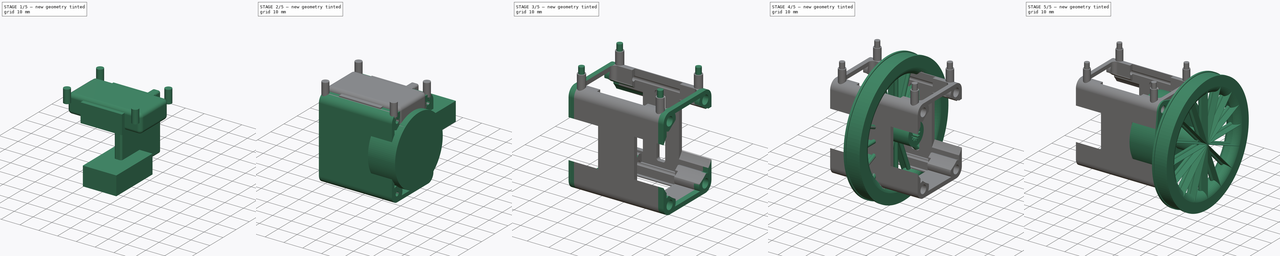
[diagram: build sequence overview — one tinted view per stage of 5, left to right]
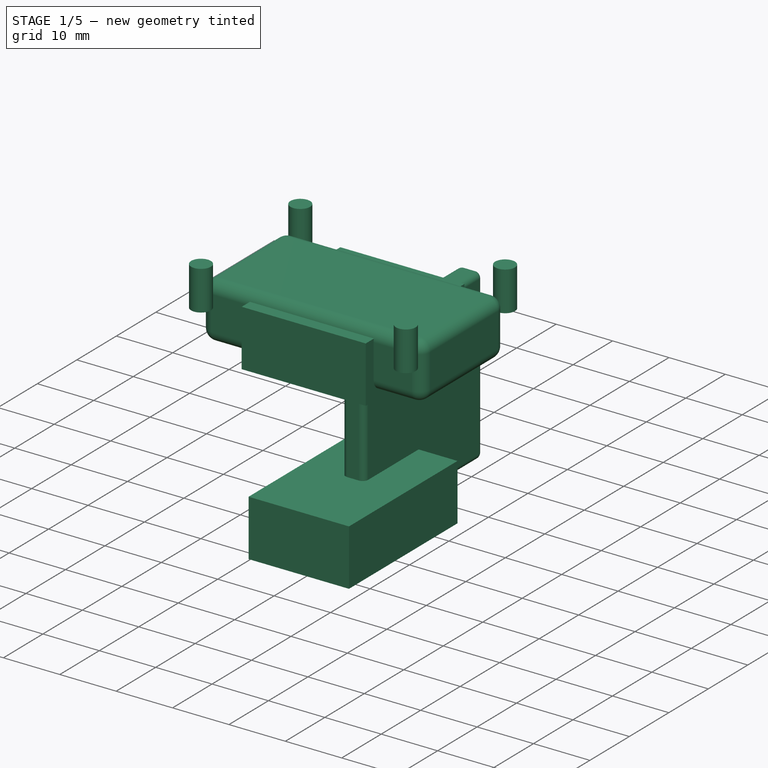
[diagram: stage 1 of 5 — iso view after this stage's code; geometry added in this stage tinted green]
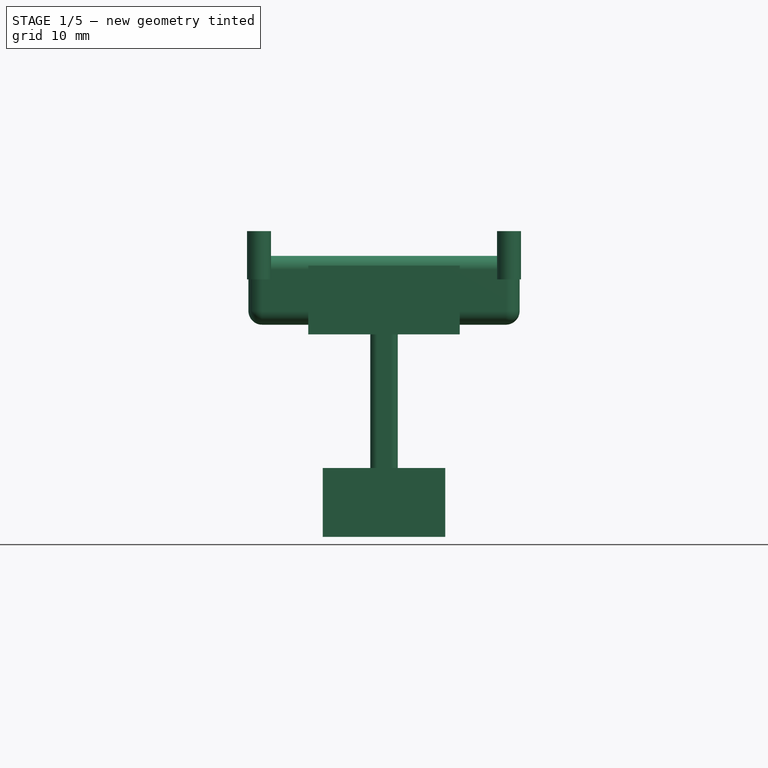
[diagram: stage 1 of 5 — front view after this stage's code; geometry added in this stage tinted green]
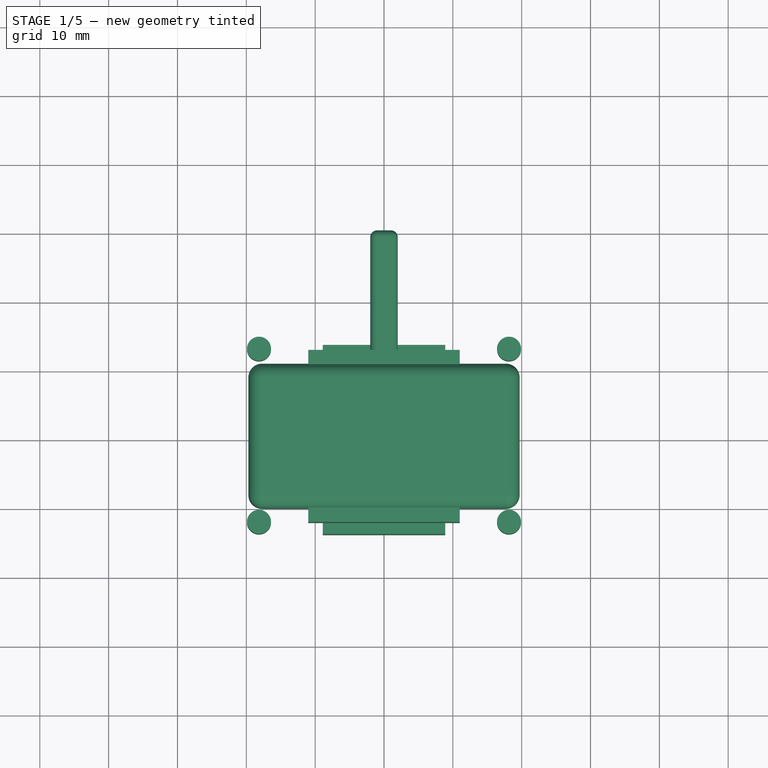
[diagram: stage 1 of 5 — top view after this stage's code; geometry added in this stage tinted green]
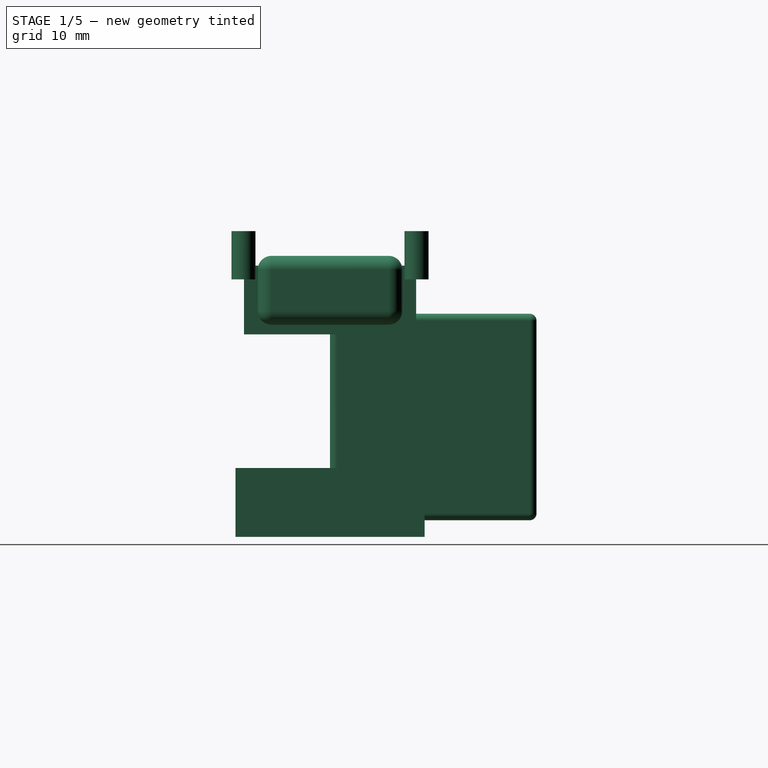
[diagram: stage 1 of 5 — right view after this stage's code; geometry added in this stage tinted green]
FCSTD DOCUMENT  (FreeCAD 0.20R29603 (Git))
Label: xilitol-robot
License: All rights reserved
LicenseURL: http://en.wikipedia.org/wiki/All_rights_reserved
objects: Sketcher::SketchObject×10, PartDesign::Body×9, Part::Box×9, PartDesign::Pad×8, Part::Cylinder×6, Part::MultiFuse×6, Part::Cut×6, Part::FeaturePython×4, App::Part×3, PartDesign::Revolution×2, PartDesign::PolarPattern×2, Part::Fillet×2, Spreadsheet::Sheet×1
note: 74 computed .brp shape members not serialized (recipe doc carries the construction recipe); baked Part::Feature solids carry a one-line shape summary decoded from their .brp

FEATURE [PartDesign::Body] Body004  label="Body005"
  Group = -> [Sketch004,Pad004]
  Origin = -> Origin006
  Tip = -> Pad004
FEATURE [Part::Box] Box007  label="Cube007"
  AttacherType = Attacher::AttachEngine3D
  Height = 10
  Length = 39.4
  Placement = pos=(-19.7,-10.5,13.4098) rot=(0,0,1;0rad)
  Width = 21
  expr: .Placement.Base.x = -Length / 2
  expr: .Placement.Base.y = -Width / 2
  expr: .Placement.Base.z = -Spreadsheet.BodyFloorZ - 8
  expr: Height = 10mm
  expr: Length = Spreadsheet.BodyInnerWidth - Spreadsheet.GenericWallThickness * 2 - Spreadsheet.GeneralSlack * 2
  expr: Width = Spreadsheet.MPUBoardHeight
FEATURE [PartDesign::Body] Body007  label="Body008"
  Group = -> [Sketch008,Revolution001,PolarPattern]
  Origin = -> Origin011
  Tip = -> PolarPattern
FEATURE [Part::Box] Box  label="Cube"
  AttacherType = Attacher::AttachEngine3D
  Height = 10
  Length = 22
  Placement = pos=(-11,-12.5,12) rot=(0,0,1;0rad)
  Width = 25
  expr: .Placement.Base.x = -Length / 2
  expr: .Placement.Base.y = -Width / 2
FEATURE [Part::Box] Box010  label="Cube010"
  AttacherType = Attacher::AttachEngine3D
  Height = 10
  Length = 17.8
  Placement = pos=(-8.9,-13.7431,-17.4098) rot=(0,0,1;0rad)
  Width = 27.4861
  expr: .Placement.Base.x = -Length / 2
  expr: .Placement.Base.y = -Width / 2
  expr: .Placement.Base.z = Spreadsheet.BodyFloorZ + 4
  expr: Height = 10mm
  expr: Length = Spreadsheet.BodyInnerWidth + Spreadsheet.GenericWallThickness * 2 - Spreadsheet.MotorBodyDepth * 2
  expr: Width = Spreadsheet.BottomMotorScrewSupportY * 2 + Spreadsheet.MotorScrewSupportDiameter - Spreadsheet.GenericWallThickness * 2
FEATURE [Part::Fillet] Fillet
  Base = -> Box007
  Edges = 12 edges r=2: [Edge1,Edge2,Edge3,Edge4,Edge5,Edge6,Edge7,Edge8,Edge9,Edge10,Edge11,Edge12]
FEATURE [Part::Box] Box011  label="Cube011"
  AttacherType = Attacher::AttachEngine3D
  Height = 30
  Length = 4
  Placement = pos=(-2,0,-15) rot=(0,0,1;0rad)
  Width = 30
  expr: .Placement.Base.x = -Length / 2
  expr: .Placement.Base.z = -Height / 2
FEATURE [Part::Fillet] Fillet001
  Base = -> Box011
  Edges = 12 edges r=1: [Edge1,Edge2,Edge3,Edge4,Edge5,Edge6,Edge7,Edge8,Edge9,Edge10,Edge11,Edge12]
FEATURE [Sketcher::SketchObject] Sketch012
  FullyConstrained = true
  MapMode = 5
  Support = -> [XY_Plane016]
  sketch-geometry (12):
    g0: Circle CenterX=-18.16 CenterY=12.573 CenterZ=0 NormalX=0 NormalY=0 NormalZ=1 AngleXU=0 Radius=1.75
    g1: Circle CenterX=-18.16 CenterY=-12.573 CenterZ=0 NormalX=0 NormalY=0 NormalZ=1 AngleXU=0 Radius=1.75
    g2: Circle CenterX=18.16 CenterY=-12.573 CenterZ=0 NormalX=0 NormalY=0 NormalZ=1 AngleXU=0 Radius=1.75
    g3: Circle CenterX=18.16 CenterY=12.573 CenterZ=0 NormalX=0 NormalY=0 NormalZ=1 AngleXU=0 Radius=1.75
    g4: LineSegment StartX=-18.16 StartY=12.573 StartZ=0 EndX=18.16 EndY=12.573 EndZ=0
    g5: LineSegment StartX=18.16 StartY=12.573 StartZ=0 EndX=18.16 EndY=-12.573 EndZ=0
    g6: LineSegment StartX=18.16 StartY=-12.573 StartZ=0 EndX=-18.16 EndY=-12.573 EndZ=0
    g7: LineSegment StartX=-18.16 StartY=-12.573 StartZ=0 EndX=-18.16 EndY=12.573 EndZ=0
    g8: LineSegment StartX=-25 StartY=20 StartZ=0 EndX=25 EndY=20 EndZ=0
    g9: LineSegment StartX=25 StartY=20 StartZ=0 EndX=25 EndY=-20 EndZ=0
    g10: LineSegment StartX=25 StartY=-20 StartZ=0 EndX=-25 EndY=-20 EndZ=0
    g11: LineSegment StartX=-25 StartY=-20 StartZ=0 EndX=-25 EndY=20 EndZ=0
  constraints (30):
    c: Equal(g3,g2)
    c: Equal(g2,g1)
    c: Equal(g1,g0)
    c: Radius(g0) = 1.75
    c: Symmetric(g0,g3,g-2)
    c: Symmetric(g0,g1,g-1)
    c: Symmetric(g2,g3,g-1)
    c: DistanceY(g1,g0) = 25.146
    c: Coincident(g4,g5)
    c: Coincident(g5,g6)
    c: Coincident(g6,g7)
    c: Coincident(g7,g4)
    c: Horizontal(g4)
    c: Horizontal(g6)
    c: Vertical(g5)
    c: Vertical(g7)
    c: Coincident(g4,g0)
    c: Coincident(g5,g2)
    c: DistanceX(g4,g4) = 36.32
    c: Coincident(g8,g9)
    c: Coincident(g9,g10)
    c: Coincident(g10,g11)
    c: Coincident(g11,g8)
    c: Horizontal(g8)
    c: Horizontal(g10)
    c: Vertical(g9)
    c: Vertical(g11)
    c: Symmetric(g8,g9,g-1)
    c: DistanceX(g8,g8) = 50
    c: DistanceY(g9,g9) = 40
FEATURE [PartDesign::Pad] Pad010
  Direction = (0,0,1)
  Length = 7
  Length2 = 10
  Profile = -> Sketch012
  ReferenceAxis = -> Sketch012 [N_Axis]
  Type = 0
FEATURE [PartDesign::Body] Body011  label="Body012"
  Group = -> [Sketch012,Pad010]
  Origin = -> Origin016
  Placement = pos=(0,0,20) rot=(0,0,1;0rad)
  Tip = -> Pad010
FEATURE [Part::Box] Box013  label="Cube013"
  AttacherType = Attacher::AttachEngine3D
  Height = 7
  Length = 50
  Placement = pos=(-25,-20,20) rot=(0,0,1;0rad)
  Width = 40
  expr: .Placement.Base.x = -Length / 2
  expr: .Placement.Base.y = -Width / 2
FEATURE [Part::Cut] Cut005
  Base = -> Box013
  Tool = -> Body011
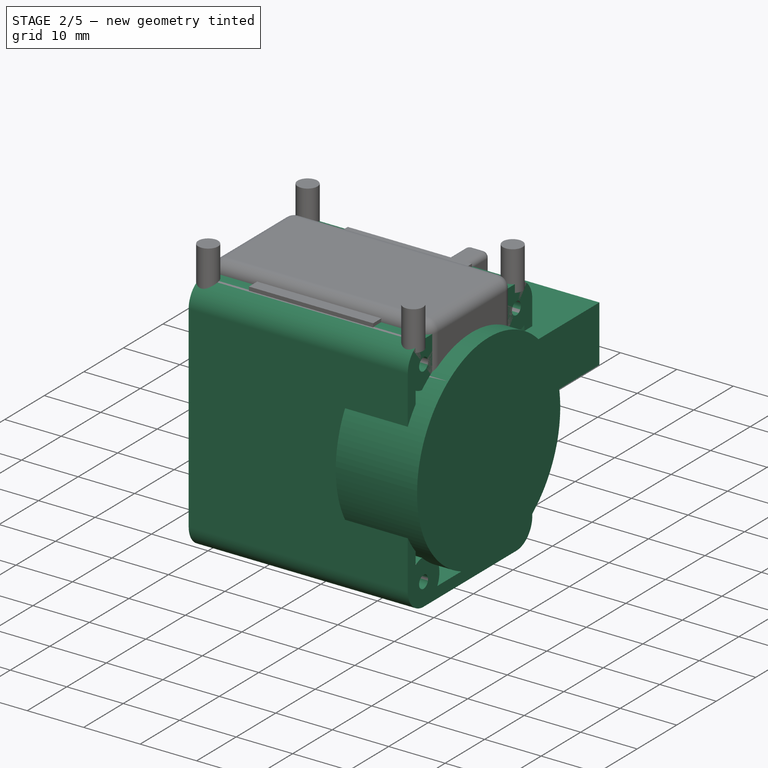
[diagram: stage 2 of 5 — iso view after this stage's code; geometry added in this stage tinted green]
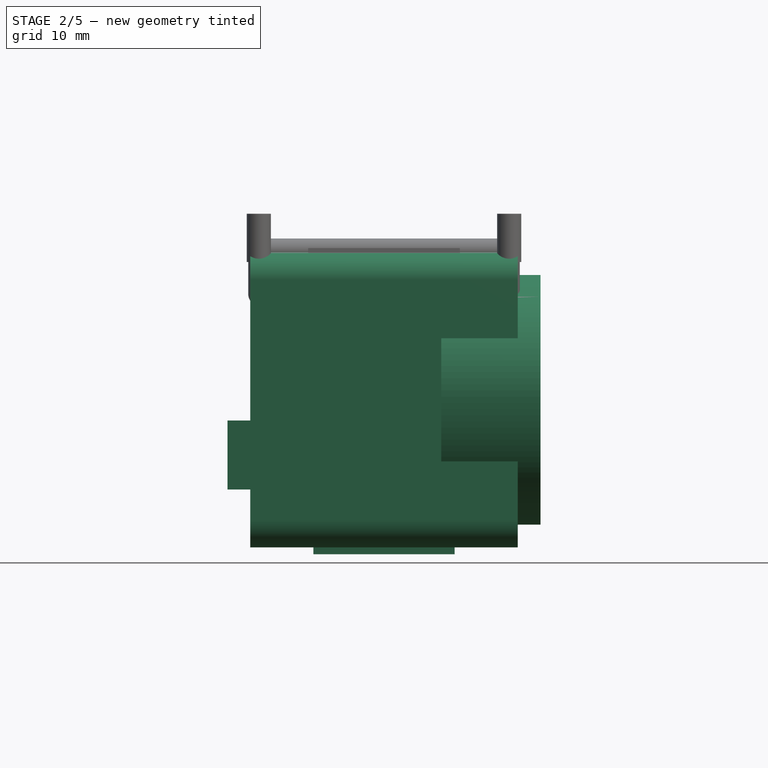
[diagram: stage 2 of 5 — front view after this stage's code; geometry added in this stage tinted green]
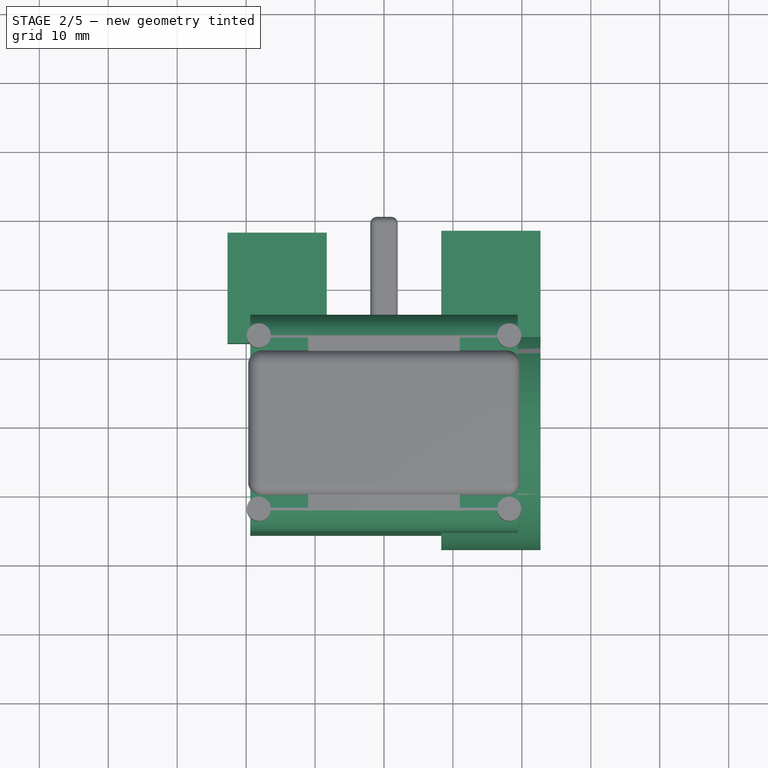
[diagram: stage 2 of 5 — top view after this stage's code; geometry added in this stage tinted green]
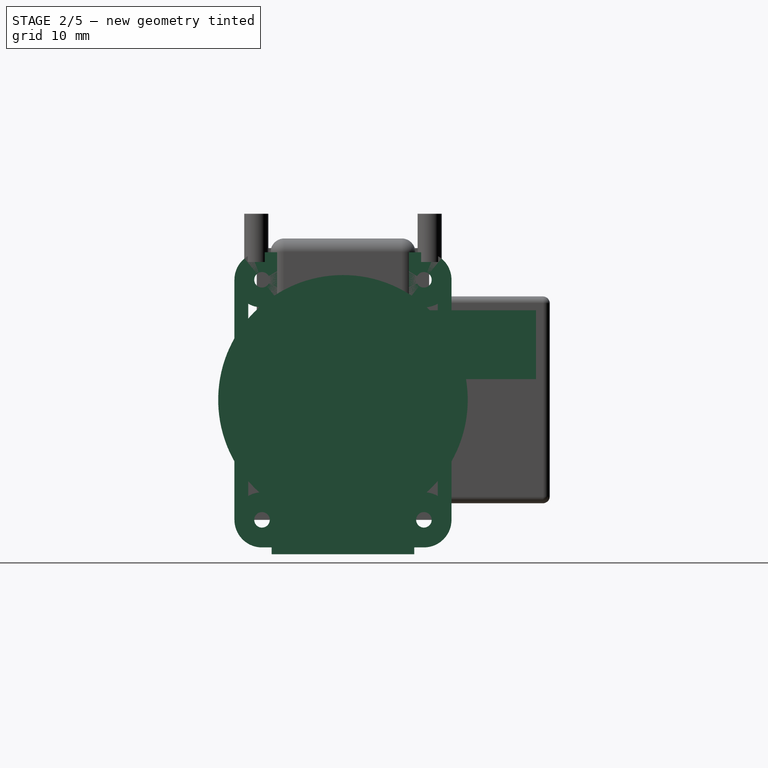
[diagram: stage 2 of 5 — right view after this stage's code; geometry added in this stage tinted green]
FEATURE [PartDesign::Body] Body
  Group = -> [Sketch,Pad]
  Origin = -> Origin001
  Placement = pos=(0,0,0) rot=(0,0,-1;0.593412rad)
  Tip = -> Pad
  expr: .Placement.Rotation.Angle = Spreadsheet.MotorSupportAngle
FEATURE [Sketcher::SketchObject] Sketch003
  FullyConstrained = true
  MapMode = 5
  Placement = pos=(0,0,0) rot=(0.57735,0.57735,0.57735;2.0944rad)
  Support = -> [YZ_Plane005]
  sketch-geometry (37):
    g0: Circle CenterX=11.7431 CenterY=17.4098 CenterZ=0 NormalX=0 NormalY=0 NormalZ=1 AngleXU=0 Radius=4
    g1: Circle CenterX=11.7431 CenterY=17.4098 CenterZ=0 NormalX=0 NormalY=0 NormalZ=1 AngleXU=0 Radius=1.125
    g2: Circle CenterX=-11.7431 CenterY=17.4098 CenterZ=0 NormalX=0 NormalY=0 NormalZ=1 AngleXU=0 Radius=4
    g3: Circle CenterX=-11.7431 CenterY=-17.4098 CenterZ=0 NormalX=0 NormalY=0 NormalZ=1 AngleXU=0 Radius=4
    g4: Circle CenterX=11.7431 CenterY=-17.4098 CenterZ=0 NormalX=0 NormalY=0 NormalZ=1 AngleXU=0 Radius=4
    g5: LineSegment StartX=-13.7431 StartY=19.4098 StartZ=0 EndX=13.7431 EndY=19.4098 EndZ=0
    g6: LineSegment StartX=13.7431 StartY=19.4098 StartZ=0 EndX=13.7431 EndY=-19.4098 EndZ=0
    g7: LineSegment StartX=13.7431 StartY=-19.4098 StartZ=0 EndX=-13.7431 EndY=-19.4098 EndZ=0
    g8: LineSegment StartX=-13.7431 StartY=-19.4098 StartZ=0 EndX=-13.7431 EndY=19.4098 EndZ=0
    g9: LineSegment StartX=-15.7431 StartY=21.4098 StartZ=0 EndX=15.7431 EndY=21.4098 EndZ=0
    g10: LineSegment StartX=15.7431 StartY=21.4098 StartZ=0 EndX=15.7431 EndY=-21.4098 EndZ=0
    g11: LineSegment StartX=15.7431 StartY=-21.4098 StartZ=0 EndX=-15.7431 EndY=-21.4098 EndZ=0
    g12: LineSegment StartX=-15.7431 StartY=-21.4098 StartZ=0 EndX=-15.7431 EndY=21.4098 EndZ=0
    g13: Circle CenterX=-11.7431 CenterY=17.4098 CenterZ=0 NormalX=0 NormalY=0 NormalZ=1 AngleXU=0 Radius=1.125
    g14: Circle CenterX=-11.7431 CenterY=-17.4098 CenterZ=0 NormalX=0 NormalY=0 NormalZ=1 AngleXU=0 Radius=1.125
    g15: Circle CenterX=11.7431 CenterY=-17.4098 CenterZ=0 NormalX=0 NormalY=0 NormalZ=1 AngleXU=0 Radius=1.125
    g16: ArcOfCircle CenterX=-11.7431 CenterY=17.4098 CenterZ=0 NormalX=0 NormalY=0 NormalZ=1 AngleXU=0 Radius=4 StartAngle=1.5708 EndAngle=3.14159
    g17: LineSegment StartX=-15.7431 StartY=17.4098 StartZ=0 EndX=-15.7431 EndY=-17.4098 EndZ=0
    g18: LineSegment StartX=-11.7431 StartY=21.4098 StartZ=0 EndX=11.7431 EndY=21.4098 EndZ=0
    g19: ArcOfCircle CenterX=11.7431 CenterY=17.4098 CenterZ=0 NormalX=0 NormalY=0 NormalZ=1 AngleXU=0 Radius=4 StartAngle=6.28318 EndAngle=7.85398
    g20: LineSegment StartX=15.7431 StartY=17.4098 StartZ=0 EndX=15.7431 EndY=-17.4098 EndZ=0
    g21: LineSegment StartX=-15.7431 StartY=17.4098 StartZ=0 EndX=15.7431 EndY=17.4098 EndZ=0
    g22: LineSegment StartX=-11.7431 StartY=21.4098 StartZ=0 EndX=-11.7431 EndY=-21.4098 EndZ=0
    g23: LineSegment StartX=-13.7431 StartY=13.9457 StartZ=0 EndX=-13.7431 EndY=-13.9457 EndZ=0
    g24: LineSegment StartX=-15.7431 StartY=-17.4098 StartZ=0 EndX=15.7431 EndY=-17.4098 EndZ=0
    g25: LineSegment StartX=-13.7431 StartY=-13.9457 StartZ=0 EndX=13.7431 EndY=-13.9457 EndZ=0
    g26: LineSegment StartX=11.7431 StartY=21.4098 StartZ=0 EndX=11.7431 EndY=-21.4098 EndZ=0
    g27: LineSegment StartX=-11.7431 StartY=-21.4098 StartZ=0 EndX=11.7431 EndY=-21.4098 EndZ=0
    g28: ArcOfCircle CenterX=-11.7431 CenterY=-17.4098 CenterZ=0 NormalX=0 NormalY=0 NormalZ=1 AngleXU=0 Radius=4 StartAngle=3.14159 EndAngle=4.71239
    g29: ArcOfCircle CenterX=-11.7431 CenterY=-17.4098 CenterZ=0 NormalX=0 NormalY=0 NormalZ=1 AngleXU=0 Radius=4 StartAngle=5.75959 EndAngle=8.37758
    g30: ArcOfCircle CenterX=11.7431 CenterY=-17.4098 CenterZ=0 NormalX=0 NormalY=0 NormalZ=1 AngleXU=0 Radius=4 StartAngle=1.0472 EndAngle=3.66519
    g31: ArcOfCircle CenterX=11.7431 CenterY=-17.4098 CenterZ=0 NormalX=0 NormalY=0 NormalZ=1 AngleXU=0 Radius=4 StartAngle=4.71239 EndAngle=6.28319
    g32: ArcOfCircle CenterX=11.7431 CenterY=17.4098 CenterZ=0 NormalX=0 NormalY=0 NormalZ=1 AngleXU=0 Radius=4 StartAngle=2.61799 EndAngle=5.23599
    g33: LineSegment StartX=13.7431 StartY=13.9457 StartZ=0 EndX=13.7431 EndY=-13.9457 EndZ=0
    g34: LineSegment StartX=-8.27895 StartY=-19.4098 StartZ=0 EndX=8.27895 EndY=-19.4098 EndZ=0
    g35: LineSegment StartX=-8.27895 StartY=19.4098 StartZ=0 EndX=8.27895 EndY=19.4098 EndZ=0
    g36: ArcOfCircle CenterX=-11.7431 CenterY=17.4098 CenterZ=0 NormalX=0 NormalY=0 NormalZ=1 AngleXU=0 Radius=4 StartAngle=4.18879 EndAngle=6.80678
  constraints (95):
    c: DistanceY(g-1,g0) = 17.4098
    c: DistanceX(g-1,g0) = 11.7431
    c: Diameter(g0) = 8
    c: Coincident(g1,g0)
    c: Diameter(g1) = 2.25  'This is the screw hole! not the neck'
    c: Coincident(g5,g6)
    c: Coincident(g6,g7)
    c: Coincident(g7,g8)
    c: Coincident(g8,g5)
    c: Horizontal(g7)
    c: Vertical(g6)
    c: Coincident(g9,g10)
    c: Coincident(g10,g11)
    c: Coincident(g11,g12)
    c: Coincident(g12,g9)
    c: Horizontal(g11)
    c: Vertical(g10)
    c: Symmetric(g5,g5,g-2)
    c: Symmetric(g7,g5,g-1)
    c: Symmetric(g9,g11,g-1)
    c: Symmetric(g9,g9,g-2)
    c: Equal(g2,g0)
    c: Equal(g0,g4)
    c: Equal(g4,g3)
    c: Coincident(g13,g2)
    c: Coincident(g14,g3)
    c: Coincident(g15,g4)
    c: Equal(g1,g13)
    c: Equal(g13,g14)
    c: Equal(g14,g15)
    c: DistanceX(g9,g5) = 2
    c: DistanceY(g5,g9) = 2
    c: Tangent(g10,g0)
    c: Symmetric(g13,g1,g-2)
    c: Symmetric(g14,g13,g-1)
    c: Symmetric(g15,g1,g-1)
    c: Tangent(g9,g0)
    c: Coincident(g16,g13)
    c: Vertical(g17)
    c: Tangent(g17,g16) = -1.5708
    c: Coincident(g18,g16)
    c: Horizontal(g18)
    c: Coincident(g19,g1)
    c: Coincident(g19,g18)
    c: Coincident(g20,g19)
    c: Vertical(g20)
    c: Coincident(g21,g16)
    c: PointOnObject(g21,g0)
    c: Horizontal(g21)
    c: PointOnObject(g16,g12)
    c: Coincident(g22,g16)
    c: Vertical(g22)
    c: PointOnObject(g23,g2)
    c: PointOnObject(g23,g3)
    c: Vertical(g23)
    c: Coincident(g24,g20)
    c: Horizontal(g24)
    c: PointOnObject(g15,g24)
    c: Coincident(g17,g24)
    c: PointOnObject(g25,g8)
    c: PointOnObject(g25,g4)
    c: Horizontal(g25)
    c: Coincident(g23,g25)
    c: Coincident(g26,g18)
    c: Vertical(g26)
    c: PointOnObject(g15,g26)
    c: Coincident(g27,g22)
    c: Coincident(g27,g26)
    c: Horizontal(g27)
    c: Coincident(g28,g14)
    c: Coincident(g28,g17)
    c: Coincident(g28,g27)
    c: Coincident(g29,g14)
    c: Coincident(g29,g23)
    c: Coincident(g30,g15)
    c: Coincident(g30,g25)
    c: PointOnObject(g30,g7)
    c: Coincident(g31,g15)
    c: Coincident(g31,g27)
    c: Coincident(g31,g20)
    c: Coincident(g32,g1)
    c: PointOnObject(g32,g0)
    c: PointOnObject(g32,g5)
    c: PointOnObject(g32,g6)
    c: Coincident(g33,g32)
    c: Coincident(g33,g30)
    c: Coincident(g34,g29)
    c: Coincident(g34,g30)
    c: Horizontal(g34)
    c: Coincident(g35,g32)
    c: Horizontal(g35)
    c: Coincident(g36,g13)
    c: Coincident(g36,g35)
    c: Coincident(g36,g23)
    c: PointOnObject(g14,g22)
FEATURE [PartDesign::Pad] Pad003
  Direction = (1,-2e-16,3e-16)
  Length = 38.8
  Length2 = 10
  Midplane = true
  Placement = pos=(0,0,0) rot=(0.57735,0.57735,0.57735;2.0944rad)
  Profile = -> Sketch003
  ReferenceAxis = -> Sketch003 [N_Axis]
  Type = 0
  expr: Length = Spreadsheet.BodyInnerWidth - 5
FEATURE [Part::Box] Box006  label="Cube006"
  AttacherType = Attacher::AttachEngine3D
  Height = 10
  Length = 20.5
  Placement = pos=(-10.25,-10.35,-22.4098) rot=(0,0,1;0rad)
  Width = 20.7
  expr: .Placement.Base.x = -Length / 2mm
  expr: .Placement.Base.y = -Spreadsheet.TCSBoardHeight / 2 - Spreadsheet.GeneralSlack * 1.5
  expr: .Placement.Base.z = Spreadsheet.BodyFloorZ - 1
  expr: Height = 10mm
  expr: Length = Spreadsheet.TCSBoardWidth + Spreadsheet.GeneralSlack * 2
  expr: Width = Spreadsheet.TCSBoardHeight + Spreadsheet.GeneralSlack * 3
FEATURE [Sketcher::SketchObject] Sketch004
  FullyConstrained = false
  MapMode = 45
  Placement = pos=(0,0,-21.6098) rot=(0,0,1;0rad)
  expr: .Placement.Base.z = Spreadsheet.BodyFloorZ - 0.2
  expr: Constraints[5] = Spreadsheet.TCSBoardWidth + Spreadsheet.GeneralSlack * 2
  sketch-geometry (4):
    g0: LineSegment StartX=10.25 StartY=-9.1 StartZ=0 EndX=10.25 EndY=-10.45 EndZ=0
    g1: LineSegment StartX=10.25 StartY=-10.45 StartZ=0 EndX=-10.25 EndY=-10.45 EndZ=0
    g2: LineSegment StartX=-10.25 StartY=-10.45 StartZ=0 EndX=-10.25 EndY=-9.1 EndZ=0
    g3: LineSegment StartX=-10.25 StartY=-9.1 StartZ=0 EndX=10.25 EndY=-9.1 EndZ=0
  constraints (10):
    c: Coincident(g0,g1)
    c: Coincident(g1,g2)
    c: Horizontal(g1)
    c: Vertical(g0)
    c: Vertical(g2)
    c: DistanceX(g1,g1) = 20.5
    c: Horizontal(g3)
    c: Coincident(g2,g3)
    c: Coincident(g0,g3)
    c: DistanceY(g2,g2) = 1.35
FEATURE [PartDesign::Pad] Pad004
  Direction = (0,0,1)
  Length = 0.5
  Length2 = 10
  Placement = pos=(0,0,-21.6098) rot=(0,0,1;0rad)
  Profile = -> Sketch004
  ReferenceAxis = -> Sketch004 [N_Axis]
  Type = 0
  expr: Length = Spreadsheet.TCSBoardThickness / 6
FEATURE [PartDesign::Body] Body003  label="Body004"
  Group = -> [Sketch003,Pad003,Sketch005,Pad005]
  Origin = -> Origin005
  Tip = -> Pad005
FEATURE [Part::Box] Box008  label="Cube008"
  AttacherType = Attacher::AttachEngine3D
  Height = 10
  Length = 14.4
  Placement = pos=(-22.7,12,-13) rot=(1,0,0;0rad)
  Width = 16
  expr: .Placement.Base.x = -Spreadsheet.BodyInnerWidth / 2 - Spreadsheet.MotorPlateThickness
  expr: .Placement.Base.y = -Width / 2 + 20mm
  expr: .Placement.Base.z = -Height / 2 - 8mm
  expr: Length = Spreadsheet.MotorBodyDepth + Spreadsheet.GeneralSlack - Spreadsheet.MotorPlateThickness
FEATURE [Part::Box] Box009  label="Cube009"
  AttacherType = Attacher::AttachEngine3D
  Height = 10
  Length = 14.4
  Placement = pos=(8.3,12,3) rot=(1,0,0;0rad)
  Width = 16
  expr: .Placement.Base.x = Spreadsheet.MotorsSeparation / 2 + Spreadsheet.MotorPlateThickness
  expr: .Placement.Base.y = -Width / 2 + 20mm
  expr: .Placement.Base.z = Height / 2 + 8mm - Height
  expr: Length = Spreadsheet.MotorBodyDepth + Spreadsheet.GeneralSlack - Spreadsheet.MotorPlateThickness
FEATURE [Part::Cylinder] Cylinder005
  Angle = 360
  AttacherType = Attacher::AttachEngine3D
  FirstAngle = 0
  Height = 14.4
  Placement = pos=(8.3,0,0) rot=(0,1,0;1.5708rad)
  Radius = 18.1
  SecondAngle = 0
  expr: .Placement.Base.x = Spreadsheet.MotorsSeparation / 2 + Spreadsheet.MotorPlateThickness
  expr: Height = Spreadsheet.MotorBodyDepth + Spreadsheet.GeneralSlack - Spreadsheet.MotorPlateThickness
  expr: Radius = Spreadsheet.MotorBodyWidth / 2 + Spreadsheet.GeneralSlack * 2
FEATURE [Sketcher::SketchObject] Sketch006
  AttachmentOffset = pos=(0,0,-21.6098) rot=(0,0,1;0rad)
  FullyConstrained = true
  MapMode = 5
  Placement = pos=(0,0,-21.6098) rot=(0,0,1;0rad)
  Support = -> [XY_Plane008]
  expr: .AttachmentOffset.Base.z = Spreadsheet.BodyFloorZ - 0.2
  expr: Constraints[10] = Spreadsheet.TCSBoardHeight / 2 - 1
  expr: Constraints[8] = Spreadsheet.TCSBoardWidth + Spreadsheet.GeneralSlack * 2
  sketch-geometry (4):
    g0: LineSegment StartX=-10.25 StartY=9.05 StartZ=0 EndX=10.25 EndY=9.05 EndZ=0
    g1: LineSegment StartX=10.25 StartY=9.05 StartZ=0 EndX=10.25 EndY=10.55 EndZ=0
    g2: LineSegment StartX=10.25 StartY=10.55 StartZ=0 EndX=-10.25 EndY=10.55 EndZ=0
    g3: LineSegment StartX=-10.25 StartY=10.55 StartZ=0 EndX=-10.25 EndY=9.05 EndZ=0
  constraints (11):
    c: Coincident(g0,g1)
    c: Coincident(g1,g2)
    c: Coincident(g2,g3)
    c: Coincident(g3,g0)
    c: Horizontal(g2)
    c: Vertical(g1)
    c: Vertical(g3)
    c: Symmetric(g0,g0,g-2)
    c: DistanceX(g0,g0) = 20.5
    c: DistanceY(g3,g3) = 1.5
    c: DistanceY(g-1,g0) = 9.05
FEATURE [PartDesign::Pad] Pad006
  Direction = (0,0,1)
  Length = 0.5
  Length2 = 10
  Profile = -> Sketch006
  ReferenceAxis = -> Sketch006 [N_Axis]
  Type = 0
  expr: Length = Spreadsheet.TCSBoardThickness / 6
FEATURE [PartDesign::Body] Body005  label="Body006"
  Group = -> [Sketch006,Pad006]
  Origin = -> Origin008
  Tip = -> Pad006
FEATURE [Part::MultiFuse] Fusion007  label="Fusion008"
  Placement = pos=(0,0,0.2) rot=(0,0,1;0rad)
  Shapes = -> [Body005,Body004]
  expr: .Placement.Base.z = 0.2mm
FEATURE [Part::Cut] Cut001
  Base = -> Box006
  Tool = -> Fusion007
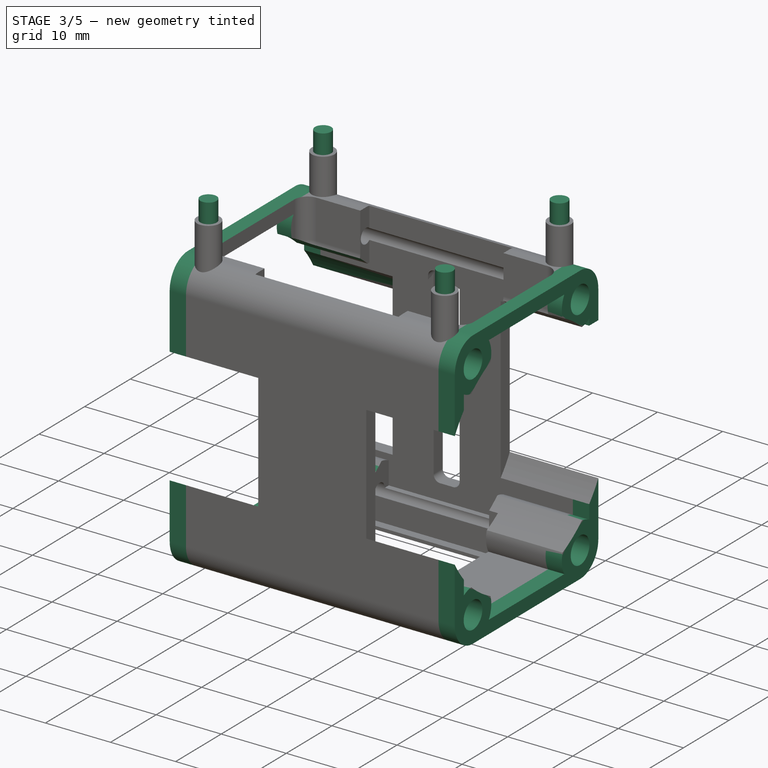
[diagram: stage 3 of 5 — iso view after this stage's code; geometry added in this stage tinted green]
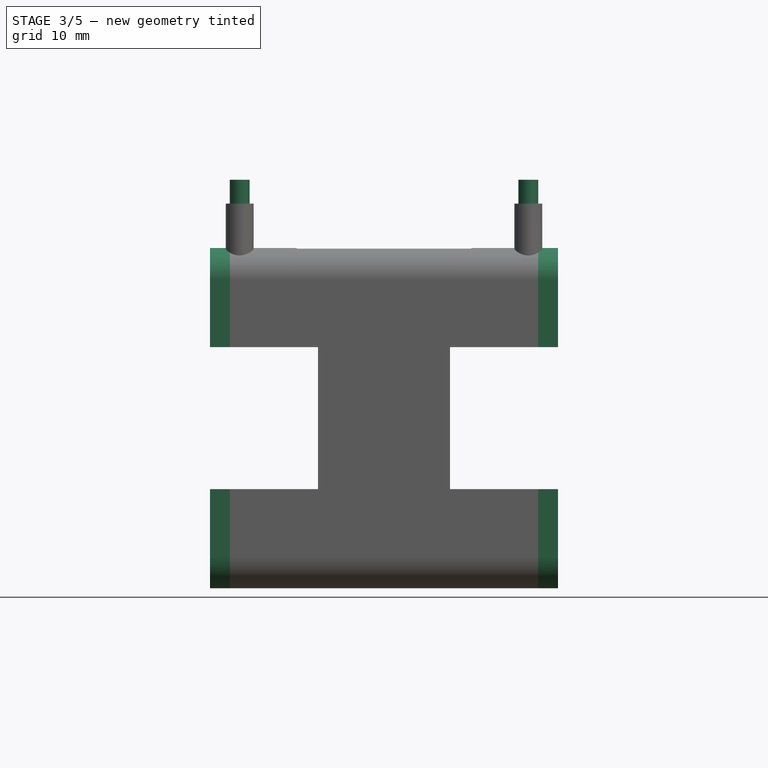
[diagram: stage 3 of 5 — front view after this stage's code; geometry added in this stage tinted green]
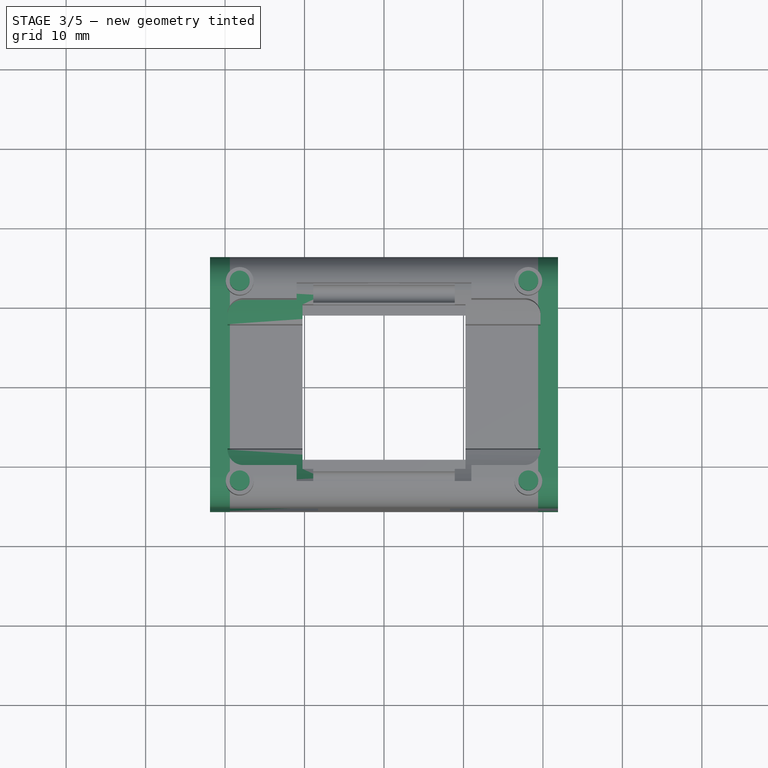
[diagram: stage 3 of 5 — top view after this stage's code; geometry added in this stage tinted green]
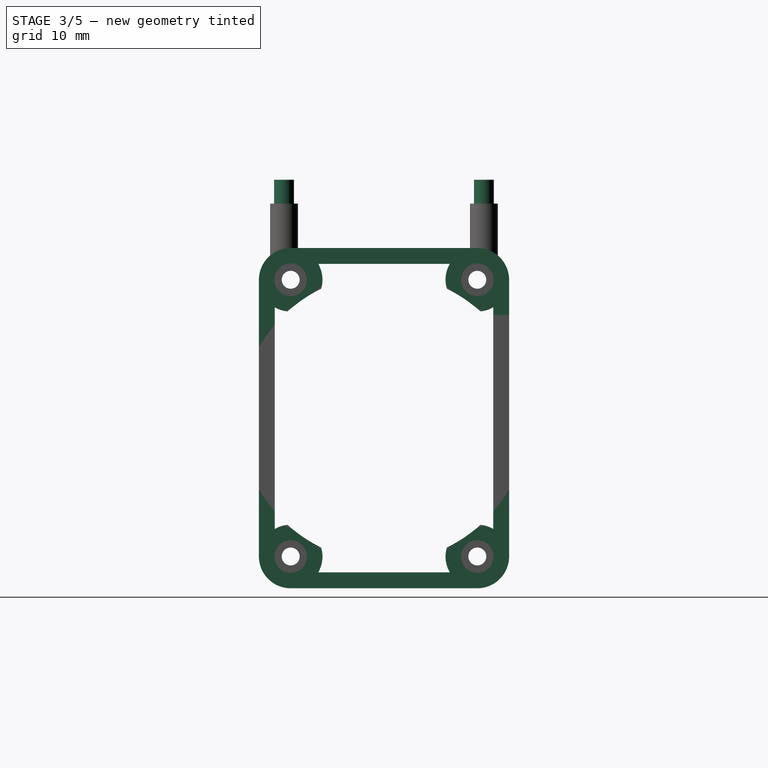
[diagram: stage 3 of 5 — right view after this stage's code; geometry added in this stage tinted green]
FEATURE [Part::Cylinder] Cylinder004
  Angle = 360
  AttacherType = Attacher::AttachEngine3D
  FirstAngle = 0
  Height = 14.4
  Placement = pos=(-22.7,0,0) rot=(0,1,0;1.5708rad)
  Radius = 18.1
  SecondAngle = 0
  expr: .Placement.Base.x = -Spreadsheet.BodyInnerWidth / 2 - Spreadsheet.MotorPlateThickness
  expr: Height = Spreadsheet.MotorBodyDepth + Spreadsheet.GeneralSlack - Spreadsheet.MotorPlateThickness
  expr: Radius = Spreadsheet.MotorBodyWidth / 2 + Spreadsheet.GeneralSlack * 2
FEATURE [Sketcher::SketchObject] Sketch005
  FullyConstrained = true
  MapMode = 5
  Placement = pos=(0,0,0) rot=(0.57735,0.57735,0.57735;2.0944rad)
  Support = -> [YZ_Plane005]
  expr: Constraints[0] = -Spreadsheet.BottomMotorScrewSupportZ
  expr: Constraints[1] = Spreadsheet.BottomMotorScrewSupportY
  expr: Constraints[2] = Spreadsheet.MotorScrewSupportDiameter
  expr: Constraints[30] = Spreadsheet.GenericWallThickness
  expr: Constraints[31] = Spreadsheet.GenericWallThickness
  expr: Constraints[4] = Spreadsheet.MotorScrewSupportNeckDiameter + Spreadsheet.GeneralSlack
  sketch-geometry (37):
    g0: Circle CenterX=11.7431 CenterY=17.4098 CenterZ=0 NormalX=0 NormalY=0 NormalZ=1 AngleXU=0 Radius=4
    g1: Circle CenterX=11.7431 CenterY=17.4098 CenterZ=0 NormalX=0 NormalY=0 NormalZ=1 AngleXU=0 Radius=2.05
    g2: Circle CenterX=-11.7431 CenterY=17.4098 CenterZ=0 NormalX=0 NormalY=0 NormalZ=1 AngleXU=0 Radius=4
    g3: Circle CenterX=-11.7431 CenterY=-17.4098 CenterZ=0 NormalX=0 NormalY=0 NormalZ=1 AngleXU=0 Radius=4
    g4: Circle CenterX=11.7431 CenterY=-17.4098 CenterZ=0 NormalX=0 NormalY=0 NormalZ=1 AngleXU=0 Radius=4
    g5: LineSegment StartX=-13.7431 StartY=19.4098 StartZ=0 EndX=13.7431 EndY=19.4098 EndZ=0
    g6: LineSegment StartX=13.7431 StartY=19.4098 StartZ=0 EndX=13.7431 EndY=-19.4098 EndZ=0
    g7: LineSegment StartX=13.7431 StartY=-19.4098 StartZ=0 EndX=-13.7431 EndY=-19.4098 EndZ=0
    g8: LineSegment StartX=-13.7431 StartY=-19.4098 StartZ=0 EndX=-13.7431 EndY=19.4098 EndZ=0
    g9: LineSegment StartX=-15.7431 StartY=21.4098 StartZ=0 EndX=15.7431 EndY=21.4098 EndZ=0
    g10: LineSegment StartX=15.7431 StartY=21.4098 StartZ=0 EndX=15.7431 EndY=-21.4098 EndZ=0
    g11: LineSegment StartX=15.7431 StartY=-21.4098 StartZ=0 EndX=-15.7431 EndY=-21.4098 EndZ=0
    g12: LineSegment StartX=-15.7431 StartY=-21.4098 StartZ=0 EndX=-15.7431 EndY=21.4098 EndZ=0
    g13: Circle CenterX=-11.7431 CenterY=17.4098 CenterZ=0 NormalX=0 NormalY=0 NormalZ=1 AngleXU=0 Radius=2.05
    g14: Circle CenterX=-11.7431 CenterY=-17.4098 CenterZ=0 NormalX=0 NormalY=0 NormalZ=1 AngleXU=0 Radius=2.05
    g15: Circle CenterX=11.7431 CenterY=-17.4098 CenterZ=0 NormalX=0 NormalY=0 NormalZ=1 AngleXU=0 Radius=2.05
    g16: ArcOfCircle CenterX=-11.7431 CenterY=17.4098 CenterZ=0 NormalX=0 NormalY=0 NormalZ=1 AngleXU=0 Radius=4 StartAngle=1.5708 EndAngle=3.14159
    g17: LineSegment StartX=-15.7431 StartY=17.4098 StartZ=0 EndX=-15.7431 EndY=-17.4098 EndZ=0
    g18: LineSegment StartX=-11.7431 StartY=21.4098 StartZ=0 EndX=11.7431 EndY=21.4098 EndZ=0
    g19: ArcOfCircle CenterX=11.7431 CenterY=17.4098 CenterZ=0 NormalX=0 NormalY=0 NormalZ=1 AngleXU=0 Radius=4 StartAngle=6.28318 EndAngle=7.85398
    g20: LineSegment StartX=15.7431 StartY=17.4098 StartZ=0 EndX=15.7431 EndY=-17.4098 EndZ=0
    g21: LineSegment StartX=-15.7431 StartY=17.4098 StartZ=0 EndX=15.7431 EndY=17.4098 EndZ=0
    g22: LineSegment StartX=-11.7431 StartY=21.4098 StartZ=0 EndX=-11.7431 EndY=-21.4098 EndZ=0
    g23: LineSegment StartX=-13.7431 StartY=13.9457 StartZ=0 EndX=-13.7431 EndY=-13.9457 EndZ=0
    g24: LineSegment StartX=-15.7431 StartY=-17.4098 StartZ=0 EndX=15.7431 EndY=-17.4098 EndZ=0
    g25: LineSegment StartX=-13.7431 StartY=-13.9457 StartZ=0 EndX=13.7431 EndY=-13.9457 EndZ=0
    g26: LineSegment StartX=11.7431 StartY=21.4098 StartZ=0 EndX=11.7431 EndY=-21.4098 EndZ=0
    g27: LineSegment StartX=-11.7431 StartY=-21.4098 StartZ=0 EndX=11.7431 EndY=-21.4098 EndZ=0
    g28: ArcOfCircle CenterX=-11.7431 CenterY=-17.4098 CenterZ=0 NormalX=0 NormalY=0 NormalZ=1 AngleXU=0 Radius=4 StartAngle=3.14159 EndAngle=4.71239
    g29: ArcOfCircle CenterX=-11.7431 CenterY=-17.4098 CenterZ=0 NormalX=0 NormalY=0 NormalZ=1 AngleXU=0 Radius=4 StartAngle=5.75959 EndAngle=8.37758
    g30: ArcOfCircle CenterX=11.7431 CenterY=-17.4098 CenterZ=0 NormalX=0 NormalY=0 NormalZ=1 AngleXU=0 Radius=4 StartAngle=1.0472 EndAngle=3.66519
    g31: ArcOfCircle CenterX=11.7431 CenterY=-17.4098 CenterZ=0 NormalX=0 NormalY=0 NormalZ=1 AngleXU=0 Radius=4 StartAngle=4.71239 EndAngle=6.28319
    g32: ArcOfCircle CenterX=11.7431 CenterY=17.4098 CenterZ=0 NormalX=0 NormalY=0 NormalZ=1 AngleXU=0 Radius=4 StartAngle=2.61799 EndAngle=5.23599
    g33: LineSegment StartX=13.7431 StartY=13.9457 StartZ=0 EndX=13.7431 EndY=-13.9457 EndZ=0
    g34: LineSegment StartX=-8.27895 StartY=-19.4098 StartZ=0 EndX=8.27895 EndY=-19.4098 EndZ=0
    g35: LineSegment StartX=-8.27895 StartY=19.4098 StartZ=0 EndX=8.27895 EndY=19.4098 EndZ=0
    g36: ArcOfCircle CenterX=-11.7431 CenterY=17.4098 CenterZ=0 NormalX=0 NormalY=0 NormalZ=1 AngleXU=0 Radius=4 StartAngle=4.18879 EndAngle=6.80678
  constraints (95):
    c: DistanceY(g-1,g0) = 17.4098
    c: DistanceX(g-1,g0) = 11.7431
    c: Diameter(g0) = 8
    c: Coincident(g1,g0)
    c: Diameter(g1) = 4.1
    c: Coincident(g5,g6)
    c: Coincident(g6,g7)
    c: Coincident(g7,g8)
    c: Coincident(g8,g5)
    c: Horizontal(g7)
    c: Vertical(g6)
    c: Coincident(g9,g10)
    c: Coincident(g10,g11)
    c: Coincident(g11,g12)
    c: Coincident(g12,g9)
    c: Horizontal(g11)
    c: Vertical(g10)
    c: Symmetric(g5,g5,g-2)
    c: Symmetric(g7,g5,g-1)
    c: Symmetric(g9,g11,g-1)
    c: Symmetric(g9,g9,g-2)
    c: Equal(g2,g0)
    c: Equal(g0,g4)
    c: Equal(g4,g3)
    c: Coincident(g13,g2)
    c: Coincident(g14,g3)
    c: Coincident(g15,g4)
    c: Equal(g1,g13)
    c: Equal(g13,g14)
    c: Equal(g14,g15)
    c: DistanceX(g9,g5) = 2
    c: DistanceY(g5,g9) = 2
    c: Tangent(g10,g0)
    c: Symmetric(g13,g1,g-2)
    c: Symmetric(g14,g13,g-1)
    c: Symmetric(g15,g1,g-1)
    c: Tangent(g9,g0)
    c: Coincident(g16,g13)
    c: Vertical(g17)
    c: Tangent(g17,g16) = -1.5708
    c: Coincident(g18,g16)
    c: Horizontal(g18)
    c: Coincident(g19,g1)
    c: Coincident(g19,g18)
    c: Coincident(g20,g19)
    c: Vertical(g20)
    c: Coincident(g21,g16)
    c: PointOnObject(g21,g0)
    c: Horizontal(g21)
    c: PointOnObject(g16,g12)
    c: Coincident(g22,g16)
    c: Vertical(g22)
    c: PointOnObject(g23,g2)
    c: PointOnObject(g23,g3)
    c: Vertical(g23)
    c: Coincident(g24,g20)
    c: Horizontal(g24)
    c: PointOnObject(g15,g24)
    c: Coincident(g17,g24)
    c: PointOnObject(g25,g8)
    c: PointOnObject(g25,g4)
    c: Horizontal(g25)
    c: Coincident(g23,g25)
    c: Coincident(g26,g18)
    c: Vertical(g26)
    c: PointOnObject(g15,g26)
    c: Coincident(g27,g22)
    c: Coincident(g27,g26)
    c: Horizontal(g27)
    c: Coincident(g28,g14)
    c: Coincident(g28,g17)
    c: Coincident(g28,g27)
    c: Coincident(g29,g14)
    c: Coincident(g29,g23)
    c: Coincident(g30,g15)
    c: Coincident(g30,g25)
    c: PointOnObject(g30,g7)
    c: Coincident(g31,g15)
    c: Coincident(g31,g27)
    c: Coincident(g31,g20)
    c: Coincident(g32,g1)
    c: PointOnObject(g32,g0)
    c: PointOnObject(g32,g5)
    c: PointOnObject(g32,g6)
    c: Coincident(g33,g32)
    c: Coincident(g33,g30)
    c: Coincident(g34,g29)
    c: Coincident(g34,g30)
    c: Horizontal(g34)
    c: Coincident(g35,g32)
    c: Horizontal(g35)
    c: Coincident(g36,g13)
    c: Coincident(g36,g35)
    c: Coincident(g36,g23)
    c: PointOnObject(g14,g22)
FEATURE [PartDesign::Pad] Pad005
  BaseFeature = -> Pad003
  Direction = (1,-2e-16,3e-16)
  Length = 43.8
  Length2 = 10
  Midplane = true
  Placement = pos=(0,0,0) rot=(0.57735,0.57735,0.57735;2.0944rad)
  Profile = -> Sketch005
  ReferenceAxis = -> Sketch005 [N_Axis]
  Type = 0
  expr: Length = Spreadsheet.BodyInnerWidth
FEATURE [Part::MultiFuse] Fusion006  label="Fusion007"
  Shapes = -> [Box008,Box009,Cylinder004,Cylinder005,Cut001,Box010,Fillet]
FEATURE [Part::Cut] Cut
  Base = -> Body003
  Tool = -> Fusion006
FEATURE [Part::Cut] Cut002
  Base = -> Cut
  Tool = -> Box
FEATURE [Sketcher::SketchObject] Sketch011
  FullyConstrained = true
  MapMode = 5
  Support = -> [XY_Plane015]
  sketch-geometry (12):
    g0: Circle CenterX=-18.16 CenterY=12.573 CenterZ=0 NormalX=0 NormalY=0 NormalZ=1 AngleXU=0 Radius=1.25
    g1: Circle CenterX=-18.16 CenterY=-12.573 CenterZ=0 NormalX=0 NormalY=0 NormalZ=1 AngleXU=0 Radius=1.25
    g2: Circle CenterX=18.16 CenterY=-12.573 CenterZ=0 NormalX=0 NormalY=0 NormalZ=1 AngleXU=0 Radius=1.25
    g3: Circle CenterX=18.16 CenterY=12.573 CenterZ=0 NormalX=0 NormalY=0 NormalZ=1 AngleXU=0 Radius=1.25
    g4: LineSegment StartX=-18.16 StartY=12.573 StartZ=0 EndX=18.16 EndY=12.573 EndZ=0
    g5: LineSegment StartX=18.16 StartY=12.573 StartZ=0 EndX=18.16 EndY=-12.573 EndZ=0
    g6: LineSegment StartX=18.16 StartY=-12.573 StartZ=0 EndX=-18.16 EndY=-12.573 EndZ=0
    g7: LineSegment StartX=-18.16 StartY=-12.573 StartZ=0 EndX=-18.16 EndY=12.573 EndZ=0
    g8: LineSegment StartX=-25 StartY=20 StartZ=0 EndX=25 EndY=20 EndZ=0
    g9: LineSegment StartX=25 StartY=20 StartZ=0 EndX=25 EndY=-20 EndZ=0
    g10: LineSegment StartX=25 StartY=-20 StartZ=0 EndX=-25 EndY=-20 EndZ=0
    g11: LineSegment StartX=-25 StartY=-20 StartZ=0 EndX=-25 EndY=20 EndZ=0
  constraints (30):
    c: Equal(g3,g2)
    c: Equal(g2,g1)
    c: Equal(g1,g0)
    c: Radius(g0) = 1.25
    c: Symmetric(g0,g3,g-2)
    c: Symmetric(g0,g1,g-1)
    c: Symmetric(g2,g3,g-1)
    c: DistanceY(g1,g0) = 25.146
    c: Coincident(g4,g5)
    c: Coincident(g5,g6)
    c: Coincident(g6,g7)
    c: Coincident(g7,g4)
    c: Horizontal(g4)
    c: Horizontal(g6)
    c: Vertical(g5)
    c: Vertical(g7)
    c: Coincident(g4,g0)
    c: Coincident(g5,g2)
    c: DistanceX(g4,g4) = 36.32
    c: Coincident(g8,g9)
    c: Coincident(g9,g10)
    c: Coincident(g10,g11)
    c: Coincident(g11,g8)
    c: Horizontal(g8)
    c: Horizontal(g10)
    c: Vertical(g9)
    c: Vertical(g11)
    c: Symmetric(g8,g9,g-1)
    c: DistanceX(g8,g8) = 50
    c: DistanceY(g9,g9) = 40
FEATURE [PartDesign::Pad] Pad009
  Direction = (0,0,1)
  Length = 10
  Length2 = 10
  Profile = -> Sketch011
  ReferenceAxis = -> Sketch011 [N_Axis]
  Type = 0
FEATURE [PartDesign::Body] Body010  label="Body011"
  Group = -> [Sketch011,Pad009]
  Origin = -> Origin015
  Placement = pos=(0,0,20) rot=(0,0,1;0rad)
  Tip = -> Pad009
FEATURE [Part::Box] Box012  label="Cube012"
  AttacherType = Attacher::AttachEngine3D
  Height = 10
  Length = 50
  Placement = pos=(-25,-20,20) rot=(0,0,1;0rad)
  Width = 40
  expr: .Placement.Base.x = -Length / 2
  expr: .Placement.Base.y = -Width / 2
FEATURE [Part::Cut] Cut003
  Base = -> Box012
  Tool = -> Body010
FEATURE [Part::Cut] Cut004
  Base = -> Cut002
  Tool = -> Fillet001
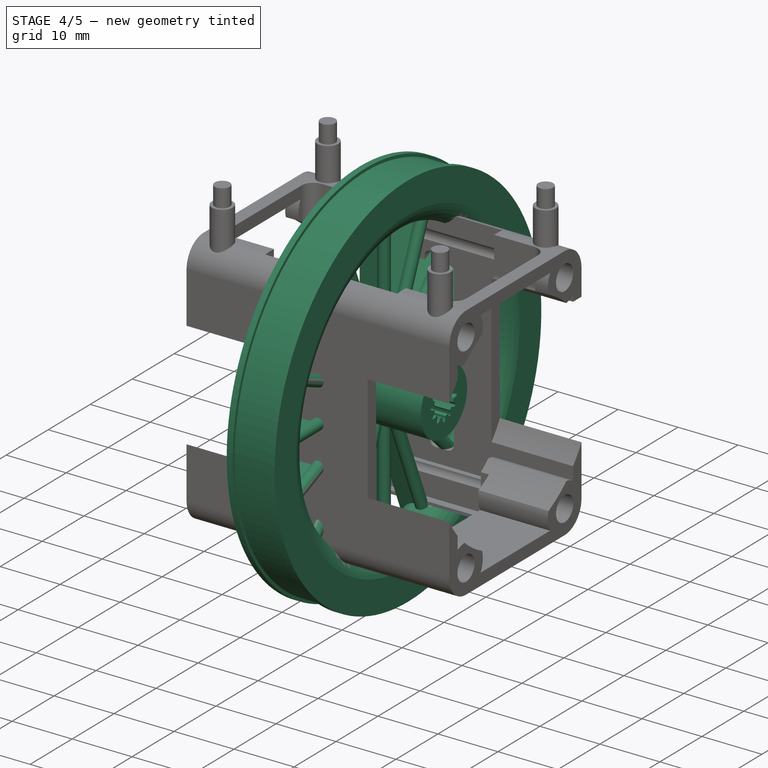
[diagram: stage 4 of 5 — iso view after this stage's code; geometry added in this stage tinted green]
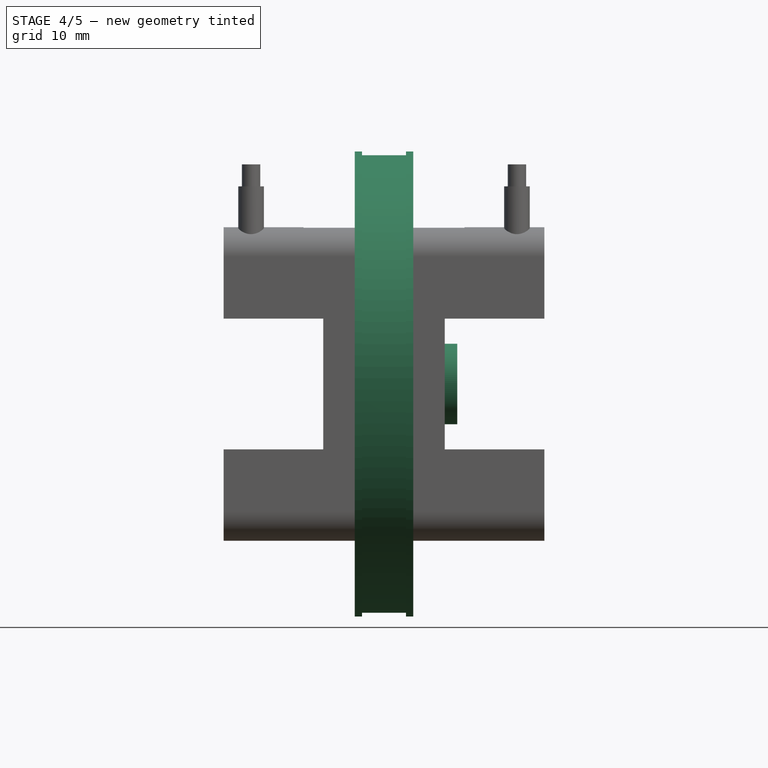
[diagram: stage 4 of 5 — front view after this stage's code; geometry added in this stage tinted green]
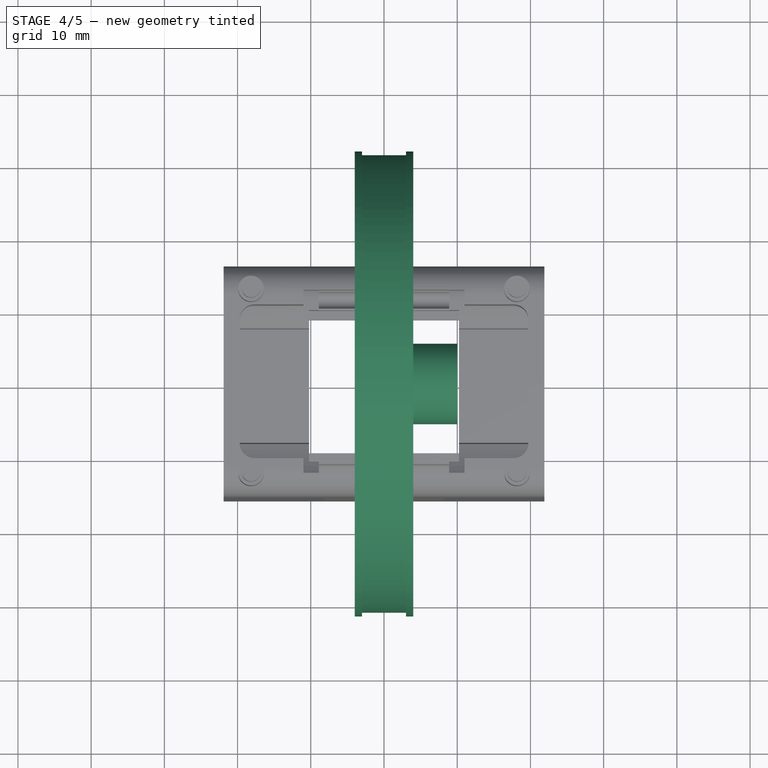
[diagram: stage 4 of 5 — top view after this stage's code; geometry added in this stage tinted green]
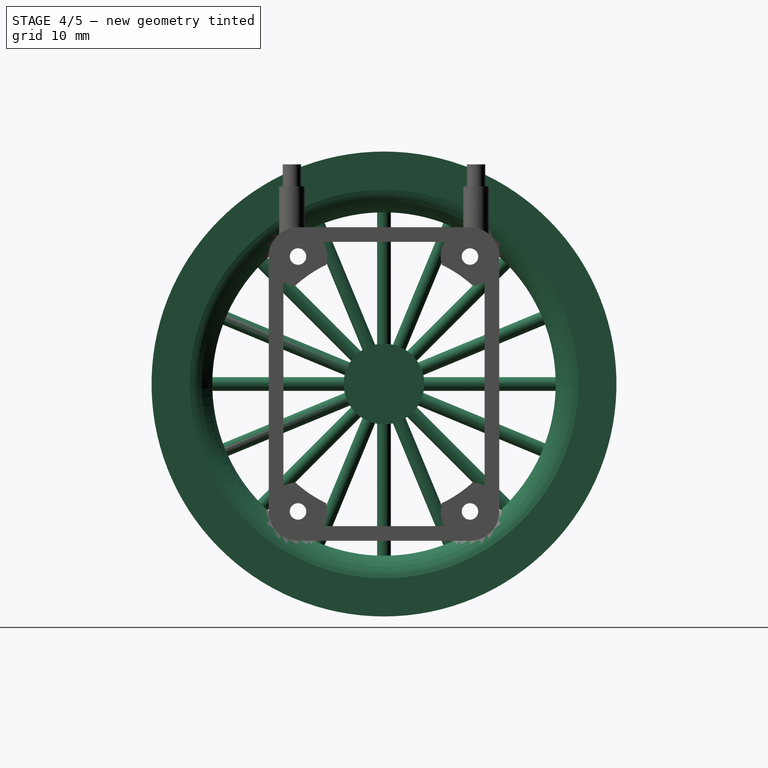
[diagram: stage 4 of 5 — right view after this stage's code; geometry added in this stage tinted green]
FEATURE [Part::FeaturePython] InternalInvoluteGear  # WARN: FeaturePython — macro-defined, semantics opaque (R4)
  AttacherType = Attacher::AttachEngine3D
  Placement = pos=(0,0,0) rot=(0,1,0;1.5708rad)
  angular_backlash = 0
  backlash = 0
  beta = 0
  clearance = 0.25
  da = 4.644
  df = 6.235
  double_helix = false
  dw = 5.16
  head = -0.4
  head_fillet = 0
  height = 10
  module = 0.43
  numpoints = 6
  outside_diameter = 11.0111
  pressure_angle = 16
  properties_from_tool = false
  reversed_backlash = false
  root_fillet = 0
  shift = 0
  simple = false
  teeth = 12
  thickness = 2.92553
  transverse_pitch = 1.35088
  version = 0.0.4
  expr: angular_backlash = backlash / dw * 360° / pi
  expr: height = Spreadsheet.WheelHeaderThickness + 2
  expr: module = Spreadsheet.WheelHeaderGearModule
  expr: teeth = Spreadsheet.WheelHeaderGearTeeth
  expr: thickness = Spreadsheet.WheelHeaderOuterDiameter / 3.76
FEATURE [Sketcher::SketchObject] Sketch007
  FullyConstrained = false
  MapMode = 5
  Placement = pos=(0,0,0) rot=(1,0,0;1.5708rad)
  Support = -> [XZ_Plane010]
  expr: Constraints[21] = Spreadsheet.WheelThickness
  expr: Constraints[3] = Spreadsheet.WheelOuterDiameter / 2
  sketch-geometry (11):
    g0: LineSegment StartX=-3 StartY=31.25 StartZ=0 EndX=3 EndY=31.25 EndZ=0
    g1: LineSegment StartX=3 StartY=31.25 StartZ=0 EndX=3 EndY=31.75 EndZ=0
    g2: LineSegment StartX=-3 StartY=31.75 StartZ=0 EndX=-3 EndY=31.25 EndZ=0
    g3: LineSegment StartX=-3 StartY=31.75 StartZ=0 EndX=-4 EndY=31.75 EndZ=0
    g4: LineSegment StartX=-4 StartY=31.75 StartZ=0 EndX=-4 EndY=26.5299 EndZ=0
    g5: LineSegment StartX=3 StartY=31.75 StartZ=0 EndX=4 EndY=31.75 EndZ=0
    g6: LineSegment StartX=4 StartY=31.75 StartZ=0 EndX=4 EndY=26.5299 EndZ=0
    g7: LineSegment StartX=1.4242 StartY=23.4519 StartZ=0 EndX=-1.4242 EndY=23.4519 EndZ=0
    g8: LineSegment StartX=-4 StartY=26.5299 StartZ=0 EndX=4 EndY=26.5299 EndZ=0
    g9: ArcOfCircle CenterX=0 CenterY=27.2605 CenterZ=0 NormalX=0 NormalY=0 NormalZ=1 AngleXU=0 Radius=4.06618 StartAngle=3.32225 EndAngle=4.35455
    g10: ArcOfCircle CenterX=0 CenterY=27.2605 CenterZ=0 NormalX=0 NormalY=0 NormalZ=1 AngleXU=0 Radius=4.06618 StartAngle=5.07023 EndAngle=6.10252
  constraints (28):
    c: Coincident(g0,g1)
    c: Coincident(g2,g0)
    c: Symmetric(g0,g0,g-2)
    c: DistanceY(g-1,g0) = 31.25
    c: Coincident(g2,g3)
    c: Coincident(g3,g4)
    c: Vertical(g4)
    c: Horizontal(g3)
    c: Coincident(g1,g5)
    c: Horizontal(g5)
    c: Coincident(g5,g6)
    c: Vertical(g6)
    c: Equal(g5,g3)
    c: DistanceX(g3,g3) = 1
    c: Vertical(g1)
    c: Vertical(g2)
    c: Symmetric(g7,g7,g-2)
    c: Equal(g4,g6)
    c: DistanceY(g0,g2) = 0.5
    c: Coincident(g8,g4)
    c: Coincident(g8,g6)
    c: DistanceX(g3,g5) = 8
    c: PointOnObject(g9,g-2)
    c: Coincident(g9,g4)
    c: Coincident(g9,g7)
    c: Coincident(g10,g9)
    c: Coincident(g10,g6)
    c: Coincident(g10,g7)
FEATURE [PartDesign::Revolution] Revolution
  Angle = 360
  Axis = (1,0,0)
  Base = (0,0,0)
  Placement = pos=(0,0,0) rot=(1,0,0;1.5708rad)
  Profile = -> Sketch007
  ReferenceAxis = -> Sketch007 [H_Axis]
FEATURE [PartDesign::Body] Body006  label="Body007"
  Group = -> [Sketch007,Revolution]
  Origin = -> Origin010
  Tip = -> Revolution
FEATURE [Part::Cylinder] Cylinder006
  Angle = 360
  AttacherType = Attacher::AttachEngine3D
  FirstAngle = 0
  Height = 5
  Placement = pos=(-1,0,0) rot=(0,1,0;1.5708rad)
  Radius = 4
  SecondAngle = 0
FEATURE [Part::MultiFuse] Fusion008  label="Fusion009"
  Shapes = -> [InternalInvoluteGear,Cylinder006]
FEATURE [Sketcher::SketchObject] Sketch008
  FullyConstrained = false
  MapMode = 5
  Support = -> [XY_Plane011]
  sketch-geometry (4):
    g0: LineSegment StartX=0 StartY=25.0658 StartZ=0 EndX=0 EndY=0 EndZ=0
    g1: LineSegment StartX=0 StartY=0 StartZ=0 EndX=0.932831 EndY=0 EndZ=0
    g2: LineSegment StartX=0.932831 StartY=0 StartZ=0 EndX=0.932831 EndY=25.0658 EndZ=0
    g3: LineSegment StartX=0.932831 StartY=25.0658 StartZ=0 EndX=0 EndY=25.0658 EndZ=0
  constraints (9):
    c: PointOnObject(g0,g-2)
    c: Coincident(g0,g-1)
    c: Coincident(g0,g1)
    c: PointOnObject(g1,g-1)
    c: Coincident(g1,g2)
    c: Vertical(g2)
    c: Coincident(g2,g3)
    c: Coincident(g3,g0)
    c: Horizontal(g3)
FEATURE [PartDesign::Revolution] Revolution001
  Angle = 360
  Axis = (0,1,0)
  Base = (0,0,0)
  Profile = -> Sketch008
  ReferenceAxis = -> Sketch008 [V_Axis]
  Reversed = true
FEATURE [PartDesign::PolarPattern] PolarPattern
  Angle = 360
  Axis = -> Sketch008 [H_Axis]
  BaseFeature = -> Revolution001
  Occurrences = 16
  Originals = -> [Revolution001]
FEATURE [Sketcher::SketchObject] Sketch009
  FullyConstrained = false
  MapMode = 5
  Placement = pos=(0,0,0) rot=(0.57735,0.57735,0.57735;2.0944rad)
  Support = -> [YZ_Plane012]
  sketch-geometry (4):
    g0: LineSegment StartX=-0.1 StartY=0 StartZ=0 EndX=0.1 EndY=0 EndZ=0
    g1: LineSegment StartX=0.1 StartY=0 StartZ=0 EndX=0.1 EndY=26.634 EndZ=0
    g2: LineSegment StartX=0.1 StartY=26.634 StartZ=0 EndX=-0.1 EndY=26.634 EndZ=0
    g3: LineSegment StartX=-0.1 StartY=26.634 StartZ=0 EndX=-0.1 EndY=0 EndZ=0
  constraints (10):
    c: Coincident(g0,g1)
    c: Coincident(g1,g2)
    c: Coincident(g2,g3)
    c: Coincident(g3,g0)
    c: Horizontal(g0)
    c: Vertical(g1)
    c: Vertical(g3)
    c: PointOnObject(g0,g-1)
    c: Symmetric(g2,g1,g-2)
    c: Distance(g2) = 0.2
FEATURE [PartDesign::Pad] Pad007
  Direction = (1,-2e-16,3e-16)
  Length = 4
  Length2 = 10
  Placement = pos=(0,0,0) rot=(0.57735,0.57735,0.57735;2.0944rad)
  Profile = -> Sketch009
  ReferenceAxis = -> Sketch009 [N_Axis]
  Reversed = true
  Type = 0
  expr: Length = Spreadsheet.WheelThickness / 2
FEATURE [PartDesign::PolarPattern] PolarPattern001
  Angle = 360
  Axis = -> Sketch009 [N_Axis]
  BaseFeature = -> Pad007
  Occurrences = 16
  Originals = -> [Pad007]
  Placement = pos=(0,0,0) rot=(0.57735,0.57735,0.57735;2.0944rad)
FEATURE [Part::MultiFuse] Fusion010  label="Fusion011"
  Shapes = -> [Cut003,Cut004,Cut005]
FEATURE [App::Part] Part001  label="Base"
  Group = -> [Body003,Box006,Cylinder004,Body004,Fusion006,Box007,Box008,Box009,Cylinder005,Cut,Fusion007,Body005,Cut001,Box,Box010,Fillet,Cut002,Box011,Fillet001,Body010,Cut003,Box012,Cut004,Fusion010]
  Origin = -> Origin007
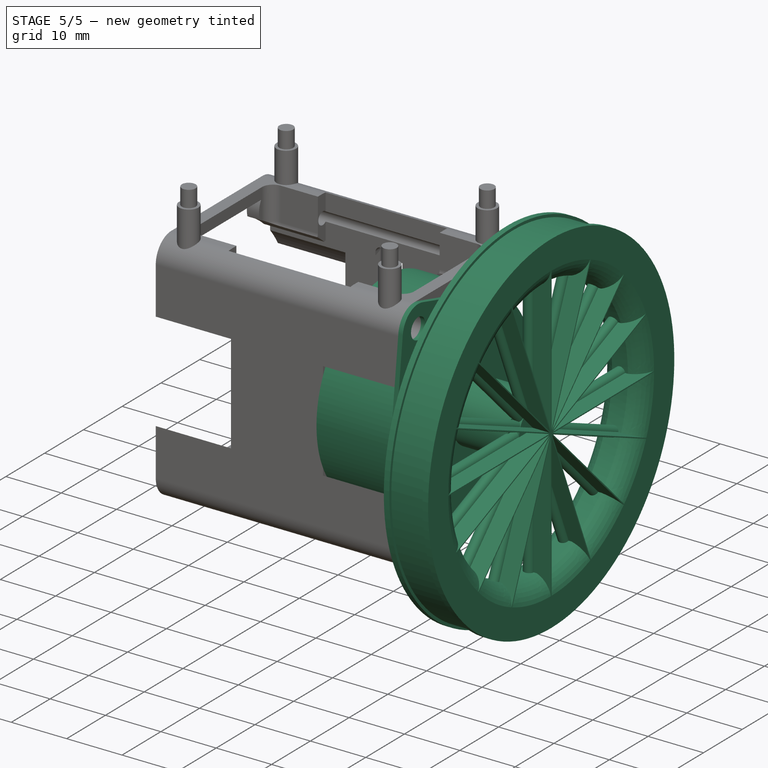
[diagram: stage 5 of 5 — iso view after this stage's code; geometry added in this stage tinted green]
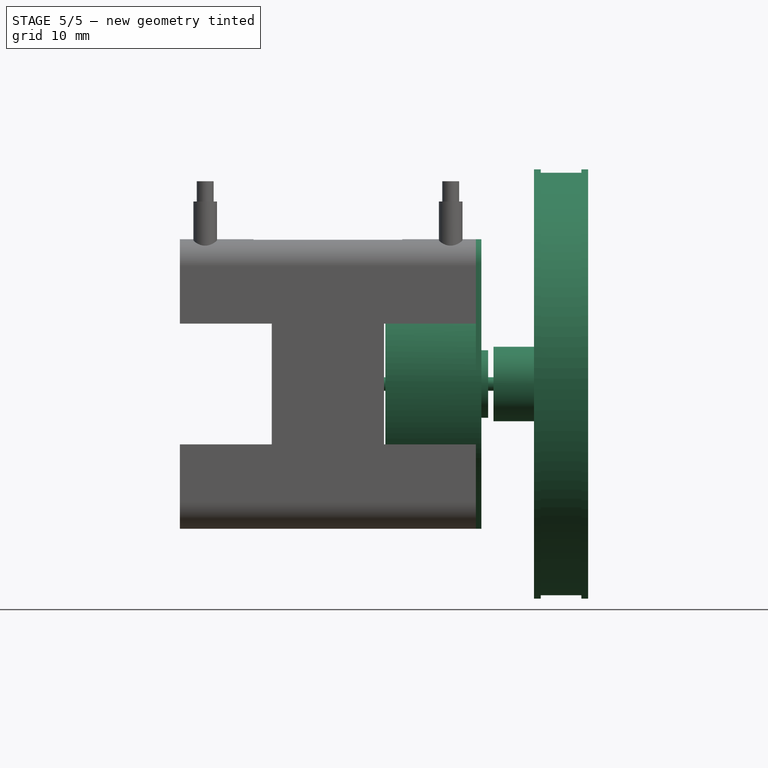
[diagram: stage 5 of 5 — front view after this stage's code; geometry added in this stage tinted green]
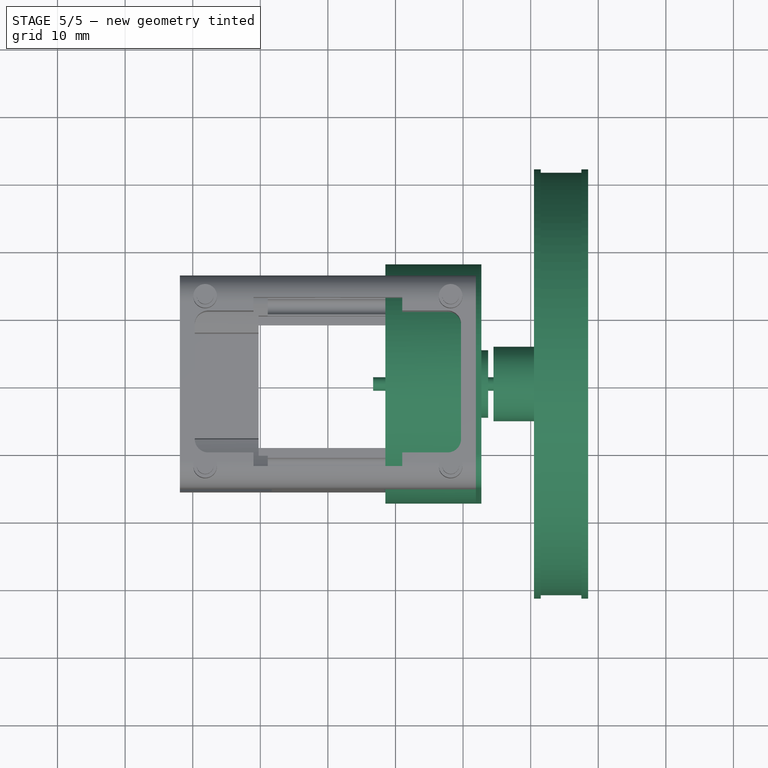
[diagram: stage 5 of 5 — top view after this stage's code; geometry added in this stage tinted green]
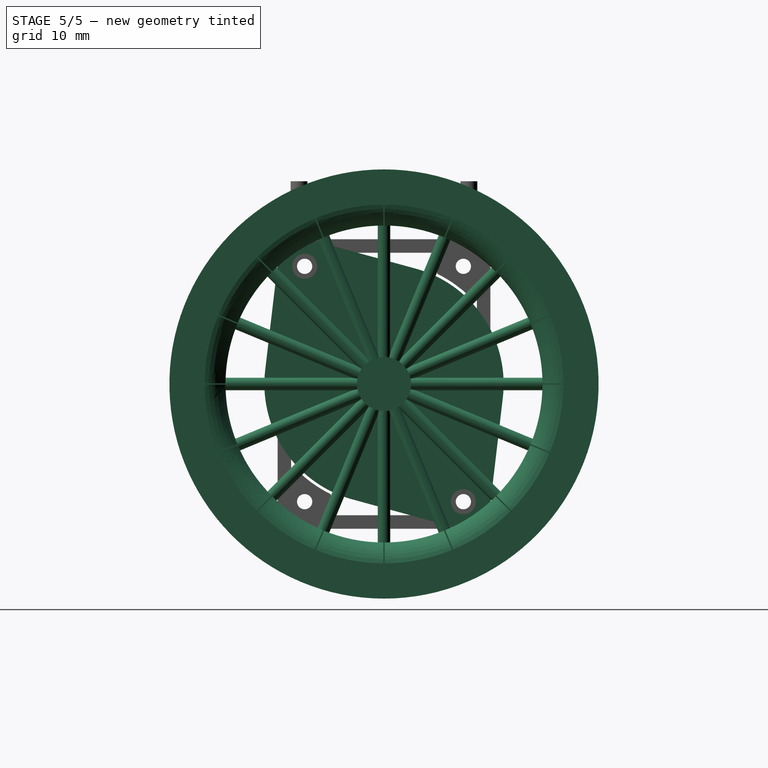
[diagram: stage 5 of 5 — right view after this stage's code; geometry added in this stage tinted green]
FEATURE [Spreadsheet::Sheet] Spreadsheet
  cells = A1=Body Inner Size; A2=BodyInnerWidth; B2(BodyInnerWidth)==MotorBodyDepth * 2 + MotorsSeparation + GeneralSlack * 2 - MotorPlateThickness * 2; A3=BodyInnerHeight; B3(BodyInnerHeight)=60; A4=BodyInnerDepth; B4(BodyInnerDepth)=38; A5=MotorsSeparation; B5(MotorsSeparation)=15; C5=(From 12-18mm) This basically defines the width of the robot; A6=Motor dimensions; A7=MotorBodyWidth; B7(MotorBodyWidth)=35.4; A8=MotorBodyHeight; B8(MotorBodyHeight)=40; A9=MotorBodyDepth; B9(MotorBodyDepth)=15; A10=MotorScrewSeparation; B10(MotorScrewSeparation)=42; A11=MotorFullDepth; B11(MotorFullDepth)=27; A12=MotorHeaderDiameter; B12(MotorHeaderDiameter)=5.5; A13=MotorHeaderHeight; B13(MotorHeaderHeight)=5.5; A14=MotorPlateThickness; B14(MotorPlateThickness)=0.8; A15=TCS dimensions (color detector module); A16=TCSScrewSeparation; B16(TCSScrewSeparation)=15; A17=TCSBoardWidth; B17(TCSBoardWidth)=20.1; A18=TCSBoardHeight; B18(TCSBoardHeight)=20.1; A19=TCSBoardThickness; B19(TCSBoardThickness)=3; A20=TCSBoardHoleBorder; B20(TCSBoardHoleBorder)=2.3; A21=Stepper driver dimensions; A22=StepperBoardWidth; B22(StepperBoardWidth)=15; A23=StepperBoardHeight; B23(StepperBoardHeight)=20.05; A24=MPU dimensions; A25=MPUBoardWidth; B25(MPUBoardWidth)=16; A26=MPUBoardHeight; B26(MPUBoardHeight)=21; A27=BuckConverter dimensions; A28=BuckConverterBoardWidth; B28(BuckConverterBoardWidth)=12.4; A29=BuckConverterBoardHeight; B29(BuckConverterBoardHeight)=18; A30=Display dimensions; A31=DisplayBoardWidth; B31(DisplayBoardWidth)=25.3; C31=It could go up to 36mm; A32=DisplayBoardHeight; B32(DisplayBoardHeight)=25.3; A33=Robot Support Measurements; A34=BottomMotorScrewSupportZ; B34(BottomMotorScrewSupportZ)==-MotorScrewSeparation / 2 * cos(MotorSupportAngle); A35=BottomMotorScrewSupportY; B35(BottomMotorScrewSupportY)==MotorScrewSeparation / 2 * sin(MotorSupportAngle); A36=MotorScrewSupportDiameter; B36(MotorScrewSupportDiameter)=8; A37=MotorScrewSupportHoleDiameter; B37(MotorScrewSupportHoleDiameter)=2.25; A38=MotorScrewSupportNeckDiameter; B38(MotorScrewSupportNeckDiameter)=3.9; C38=Enough to fit the neck for the screw under the motor's plate; A39=BodyFloorZ; B39(BodyFloorZ)==BottomMotorScrewSupportZ - MotorScrewSupportDiameter / 2; C39=Lowest part of the body, without counting the wheels; A40=GenericWallThickness; B40(GenericWallThickness)=2; A41=GeneralSlack; B41(GeneralSlack)=0.2; A42=MotorSupportAngle; B42(MotorSupportAngle)=34; A43=Wheels measurements; A44=WheelOuterDiameter; B44(WheelOuterDiameter)=62.5; A45=WheelThickness; B45(WheelThickness)=8; A46=WheelHeaderOuterDiameter; B46(WheelHeaderOuterDiameter)=11; A47=WheelHeaderGearTeeth; B47(WheelHeaderGearTeeth)=12; A48=WheelHeaderGearModule; B48(WheelHeaderGearModule)=0.43; A49=WheelHeaderThickness; B49(WheelHeaderThickness)=8
FEATURE [Part::Cylinder] Cylinder
  Angle = 360
  AttacherType = Attacher::AttachEngine3D
  FirstAngle = 0
  Height = 14.2
  Radius = 17.7
  SecondAngle = 0
  expr: Height = Spreadsheet.MotorBodyDepth - Spreadsheet.MotorPlateThickness
  expr: Radius = Spreadsheet.MotorBodyWidth / 2
FEATURE [Part::Cylinder] Cylinder001
  Angle = 360
  AttacherType = Attacher::AttachEngine3D
  FirstAngle = 0
  Height = 27
  Placement = pos=(0,0,-11) rot=(0,0,1;0rad)
  Radius = 1
  SecondAngle = 0
FEATURE [Part::Cylinder] Cylinder003
  Angle = 360
  AttacherType = Attacher::AttachEngine3D
  FirstAngle = 0
  Height = 10
  Placement = pos=(0,0,-1) rot=(0,0,1;0rad)
  Radius = 5
  SecondAngle = 0
FEATURE [Sketcher::SketchObject] Sketch
  FullyConstrained = true
  MapMode = 5
  Support = -> [XY_Plane001]
  expr: Constraints[9] = Spreadsheet.MotorBodyWidth
  sketch-geometry (12):
    g0: LineSegment StartX=-23.6095 StartY=3.03156 StartZ=0 EndX=-11.5471 EndY=13.4147 EndZ=0
    g1: LineSegment StartX=-23.6095 StartY=-3.03156 StartZ=0 EndX=-11.5471 EndY=-13.4147 EndZ=0
    g2: LineSegment StartX=11.5471 StartY=13.4147 StartZ=0 EndX=23.6095 EndY=3.03156 EndZ=0
    g3: LineSegment StartX=23.6095 StartY=-3.03156 StartZ=0 EndX=11.5471 EndY=-13.4147 EndZ=0
    g4: Circle CenterX=-21 CenterY=-1.1e-15 CenterZ=0 NormalX=0 NormalY=0 NormalZ=1 AngleXU=0 Radius=1.85
    g5: Circle CenterX=21 CenterY=-9e-16 CenterZ=0 NormalX=0 NormalY=0 NormalZ=1 AngleXU=0 Radius=1.85
    g6: LineSegment StartX=-21 StartY=5.2778 StartZ=0 EndX=-21 EndY=-5.2778 EndZ=0
    g7: LineSegment StartX=-25 StartY=-2.1e-15 StartZ=0 EndX=25 EndY=-2.1e-15 EndZ=0
    g8: ArcOfCircle CenterX=0 CenterY=0 CenterZ=0 NormalX=0 NormalY=0 NormalZ=1 AngleXU=0 Radius=17.7 StartAngle=0.860075 EndAngle=2.28152
    g9: ArcOfCircle CenterX=0 CenterY=0 CenterZ=0 NormalX=0 NormalY=0 NormalZ=1 AngleXU=0 Radius=17.7 StartAngle=4.00167 EndAngle=5.42311
    g10: ArcOfCircle CenterX=-21 CenterY=-1.1e-15 CenterZ=0 NormalX=0 NormalY=0 NormalZ=1 AngleXU=0 Radius=4 StartAngle=2.28152 EndAngle=4.00167
    g11: ArcOfCircle CenterX=21 CenterY=-9e-16 CenterZ=0 NormalX=0 NormalY=0 NormalZ=1 AngleXU=0 Radius=4 StartAngle=5.42311 EndAngle=7.14326
  constraints (28):
    c: Equal(g0,g1)
    c: Equal(g4,g5)
    c: PointOnObject(g6,g0)
    c: PointOnObject(g6,g1)
    c: Vertical(g6)
    c: Diameter(g4) = 3.7
    c: Horizontal(g7)
    c: DistanceX(g7,g7) = 50
    c: Coincident(g9,g8)
    c: Diameter(g8) = 35.4
    c: Coincident(g10,g4)
    c: Coincident(g11,g5)
    c: Equal(g10,g11)
    c: DistanceX(g4,g5) = 42
    c: Tangent(g8,g0) = 1.5708
    c: Tangent(g9,g1) = -1.5708
    c: Tangent(g8,g2) = 1.5708
    c: Tangent(g9,g3) = 1.5708
    c: Tangent(g10,g1) = -1.5708
    c: Tangent(g10,g0) = 1.5708
    c: Tangent(g11,g2) = 1.5708
    c: Tangent(g11,g3) = 1.5708
    c: Coincident(g8,g-1)
    c: PointOnObject(g4,g6)
    c: Symmetric(g0,g1,g7)
    c: Symmetric(g3,g1,g-2)
    c: PointOnObject(g7,g10)
    c: PointOnObject(g7,g11)
FEATURE [PartDesign::Pad] Pad
  Direction = (0,0,1)
  Length = 0.8
  Length2 = 10
  Profile = -> Sketch
  ReferenceAxis = -> Sketch [N_Axis]
  Type = 0
  expr: Length = Spreadsheet.MotorPlateThickness
FEATURE [Part::FeaturePython] CycloidGear  # WARN: FeaturePython — macro-defined, semantics opaque (R4)
  AttacherType = Attacher::AttachEngine3D
  Placement = pos=(0,0,-11) rot=(0,0,1;0rad)
  angular_backlash = 0
  backlash = 0
  beta = 0
  clearance = 0.25
  double_helix = false
  dw = 4.8
  head = 0
  head_fillet = 0
  height = 5.5
  inner_diameter = 6
  module = 0.4
  numpoints = 15
  outer_diameter = 7.5
  root_fillet = 0
  teeth = 12
  version = 0.0.4
  expr: angular_backlash = backlash / dw * 360° / pi
  expr: dw = teeth * module
  expr: height = Spreadsheet.MotorHeaderHeight
  expr: inner_diameter = teeth / 2
FEATURE [Part::MultiFuse] Fusion
  Placement = pos=(0,0,0) rot=(0,1,0;1.5708rad)
  Shapes = -> [Cylinder,Cylinder001,Cylinder003,Body,CycloidGear]
FEATURE [App::Part] Part  label="Motor01"
  Group = -> [Cylinder003,Cylinder001,Body,Cylinder,Fusion]
  Origin = -> Origin
  Placement = pos=(-22.7,0,0) rot=(0,0,1;0rad)
  expr: .Placement.Base.x = -Spreadsheet.MotorsSeparation / 2 - Spreadsheet.MotorBodyDepth - Spreadsheet.GeneralSlack
FEATURE [Part::FeaturePython] Clone  label="Motor02"  # Draft clone (typed FeaturePython)
  AttacherType = Attacher::AttachEngine3D
  Fuse = false
  Objects = -> [Part]
  Placement = pos=(22.7,0,0) rot=(0,0,1;3.14159rad)
  Scale = (1,1,1)
  expr: .Placement.Base.x = Spreadsheet.MotorsSeparation / 2 + Spreadsheet.MotorBodyDepth + Spreadsheet.GeneralSlack
FEATURE [PartDesign::Body] Body008  label="Body009"
  Group = -> [Sketch009,Pad007,PolarPattern001]
  Origin = -> Origin012
  Tip = -> PolarPattern001
FEATURE [Part::MultiFuse] Fusion009  label="Fusion010"
  Shapes = -> [Body006,Body007,Fusion008,Body008]
FEATURE [App::Part] Part002  label="Wheel01"
  Group = -> [InternalInvoluteGear,Body006,Cylinder006,Fusion008,Body007,Fusion009]
  Origin = -> Origin009
  Placement = pos=(-34.5,0,0) rot=(0,0,1;0rad)
  expr: .Placement.Base.x = -Spreadsheet.MotorsSeparation / 2 - Spreadsheet.MotorFullDepth
FEATURE [Part::FeaturePython] Clone001  label="Wheel02"  # Draft clone (typed FeaturePython)
  AttacherType = Attacher::AttachEngine3D
  Fuse = false
  Objects = -> [Part002]
  Placement = pos=(34.5,0,0) rot=(0,0,1;3.14159rad)
  Scale = (1,1,1)
  expr: .Placement.Base.x = Spreadsheet.MotorsSeparation / 2 + Spreadsheet.MotorFullDepth
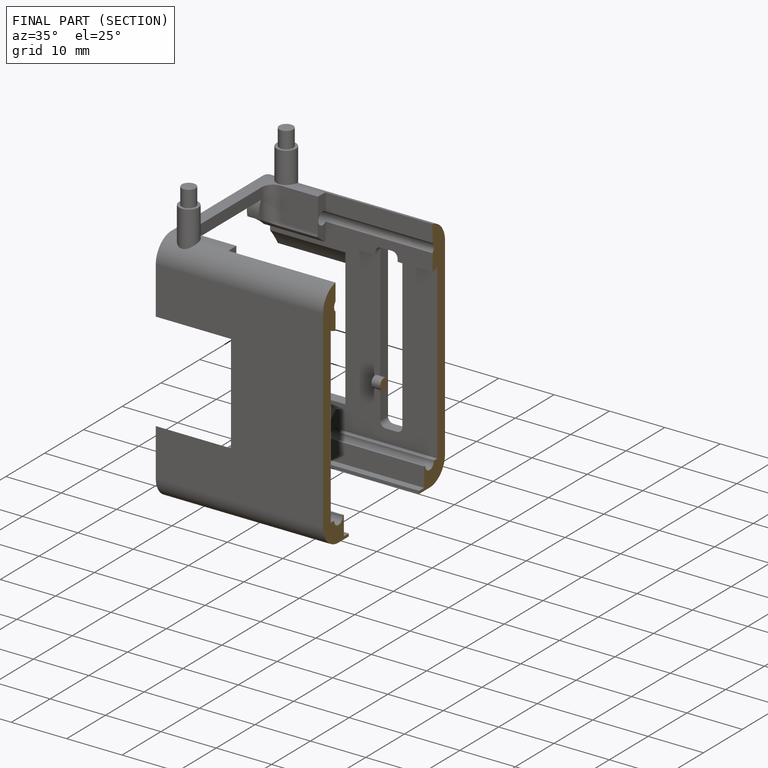
[diagram: finished part — half-section view (interior)]
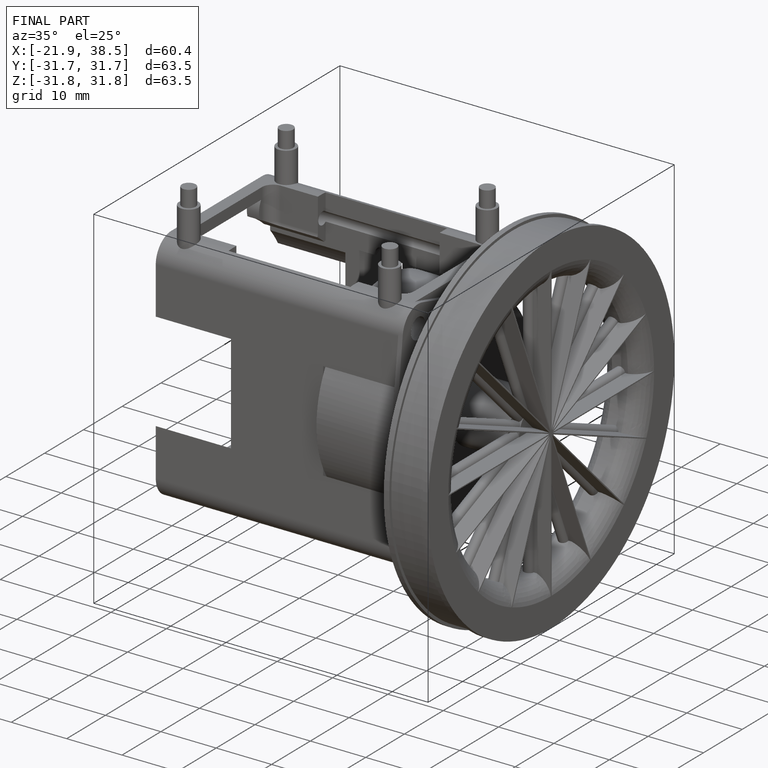
[diagram: finished part — iso view with bounding-box wireframe]
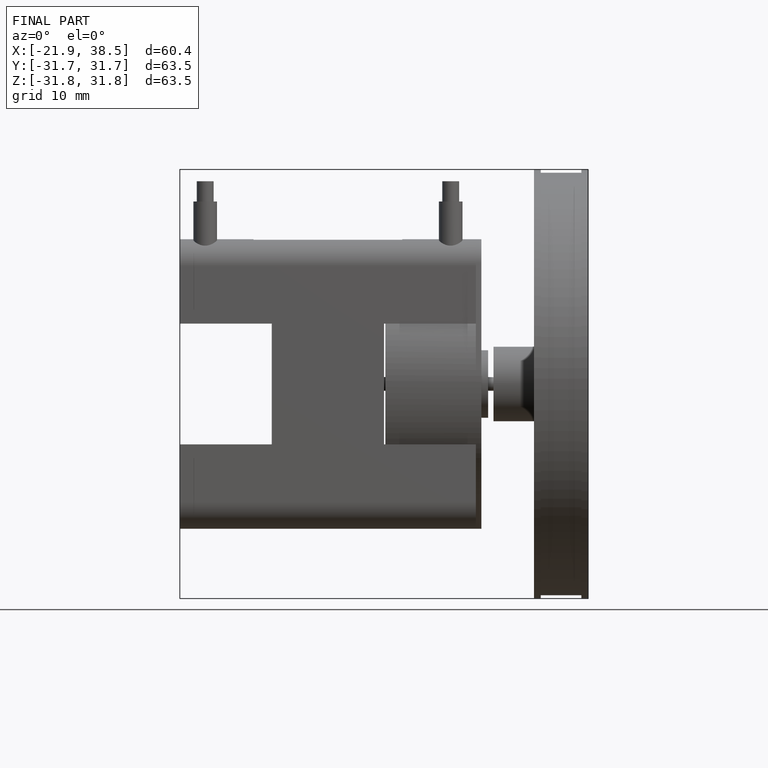
[diagram: finished part — front view with bounding-box wireframe]
